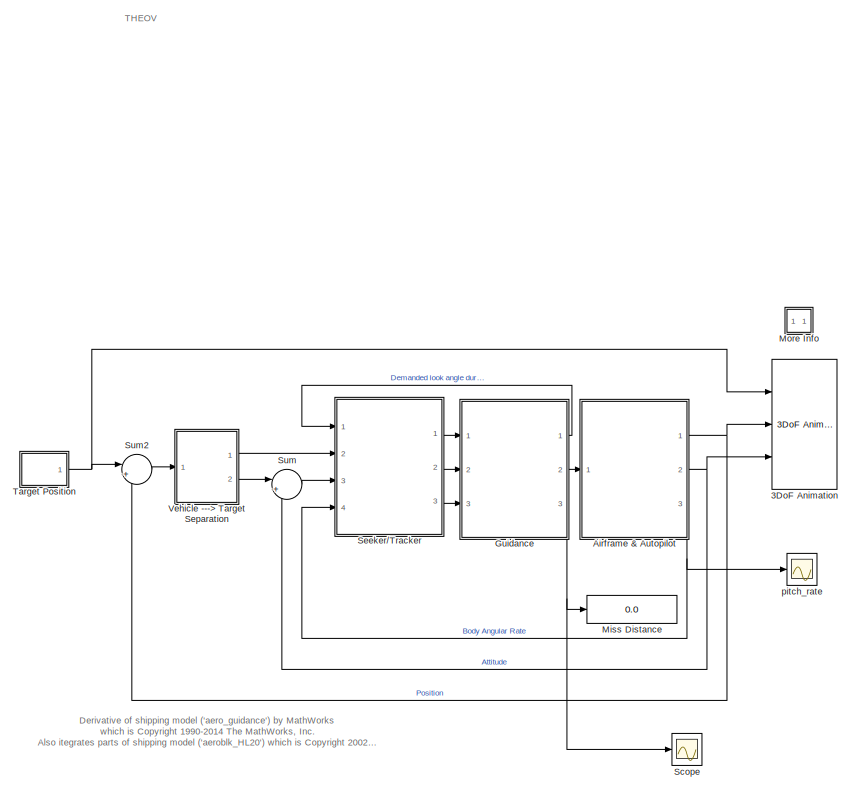
[diagram: root canvas - part 1/2, right side, full height]
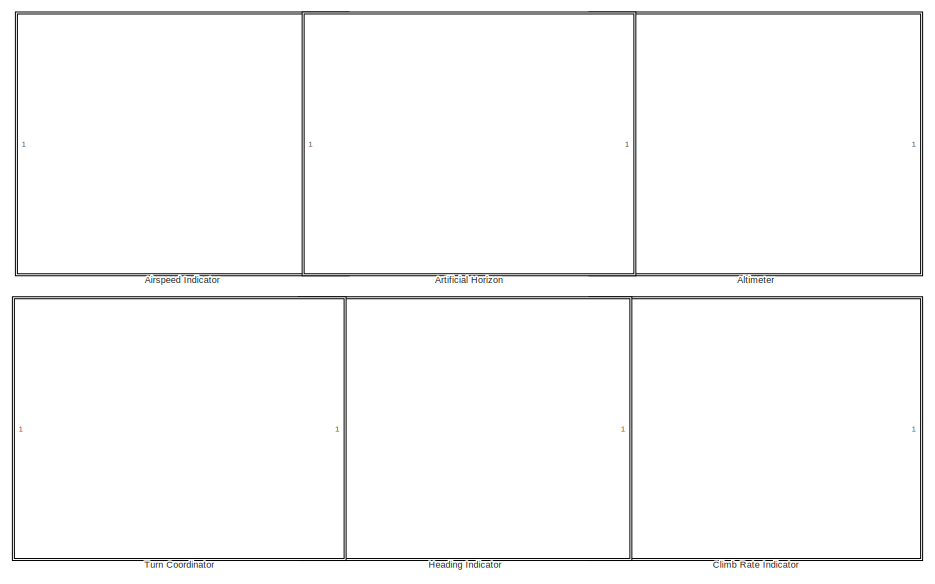
[diagram: root canvas - part 2/2, middle left region]
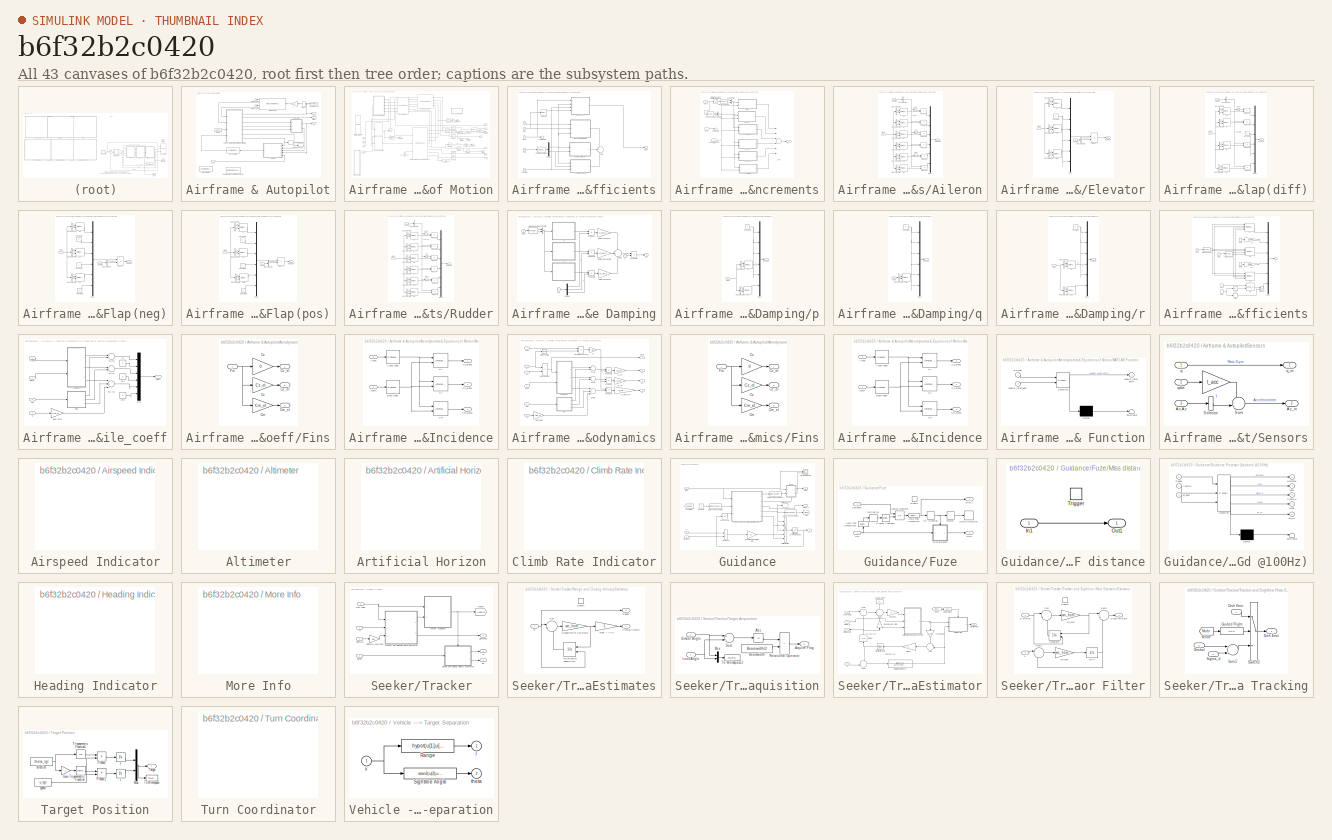
[diagram: thumbnail index - all 43 canvases of the model, root first then tree order]
MODEL slx_b6f32b2c0420
KIND model
CONFIG AbsTol = 1e-6
CONFIG EnableMultiTasking = off
CONFIG FixedStep = auto
CONFIG MaxStep = auto
CONFIG MinStep = auto
CONFIG PreLoadFcn = % aeroblk_init_HL20\naero_guid_dat\n
CONFIG RelTol = 1e-3
CONFIG SampleTimeConstraint = Unconstrained
CONFIG Solver = ode45
CONFIG SolverName = ode45
CONFIG StartTime = 0.0
CONFIG StopFcn = aero_guid_plot
CONFIG StopTime = 5
BLOCK [Reference] 3DoF Animation  REF=aerospace/Animation/3DoF Animation  (lib defined in mdl_cf564d925549, slx_1354fe9238a2, +3 more)
  Ports = [3]
  SourceBlock = aerospace/Animation/3DoF Animation
  SourceProductBaseCode = SL
  SourceProductName = Simulink
  SourceType = 3DoF Animation
BLOCK [SubSystem] Airframe & Autopilot
  Ports = [1, 3]
  RequestExecContextInheritance = off
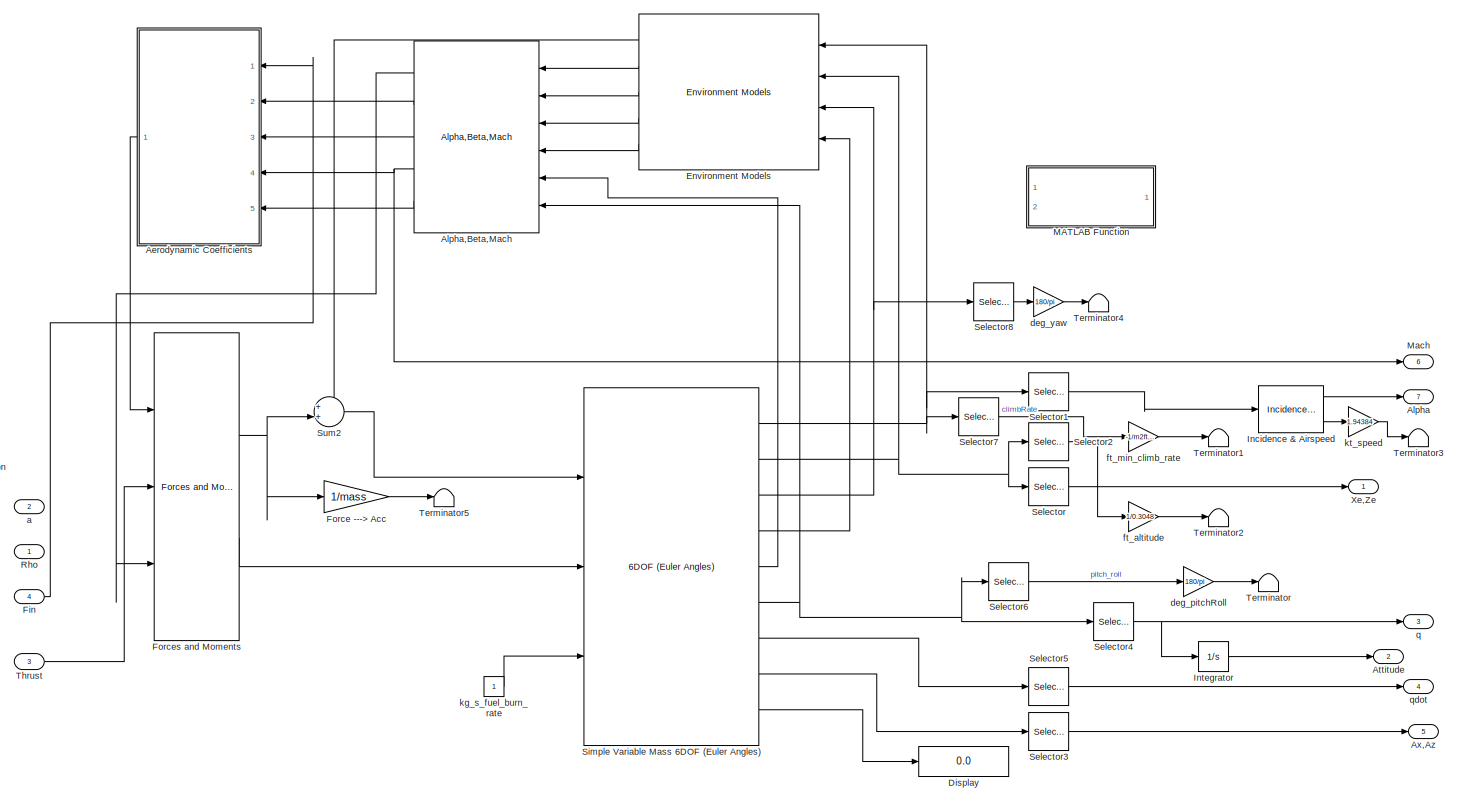
[diagram: Airframe & Autopilot/Aerodynamics & Equations of Motion - part 1/2, most of the canvas]
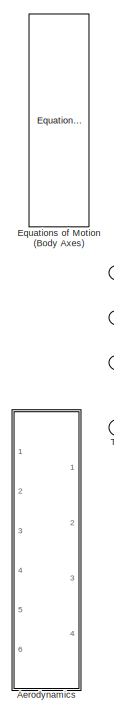
[diagram: Airframe & Autopilot/Aerodynamics & Equations of Motion - part 2/2, left side, full height]
BLOCK [SubSystem] Airframe & Autopilot/Aerodynamics & Equations of Motion
  Ports = [4, 7]
  RequestExecContextInheritance = off
BLOCK [Reference] Airframe & Autopilot/Aerodynamics & Equations of Motion/ Equations of Motion (Body Axes)  REF=aerospace/3DoF  (lib defined in mdl_cf564d925549, slx_1354fe9238a2, +3 more)
Equations
of
Motion / Equations of Motion
(Body Axes)
  Ports = [3, 6]
  SourceBlock = aerospace/3DoF\nEquations\nof\nMotion / Equations of Motion\n(Body Axes)
  SourceProductBaseCode = SL
  SourceProductName = Simulink
  SourceType = 3 DOF equations of motion
BLOCK [SubSystem] Airframe & Autopilot/Aerodynamics & Equations of Motion/Aerodynamic Coefficients
  AncestorBlock = aeroblk_lib_HL20/HL20\nAirframe/Aerodynamic\nCoefficients
  Ports = [5, 1]
  RequestExecContextInheritance = off
BLOCK [SubSystem] Airframe & Autopilot/Aerodynamics & Equations of Motion/Aerodynamic Coefficients/Actuator Increments
  Commented = on
  Ports = [3, 1]
  RequestExecContextInheritance = off
BLOCK [Saturate] Airframe & Autopilot/Aerodynamics & Equations of Motion/Aerodynamic Coefficients/Actuator Increments/(0 to inf) Constants Held fixed for alpha<0
  InputPortMap = u0
  LowerLimit = 0
  Ports = [1, 1]
  UpperLimit = inf
BLOCK [Inport] Airframe & Autopilot/Aerodynamics & Equations of Motion/Aerodynamic Coefficients/Actuator Increments/Actuator Deflections 
  IconDisplay = Port number
  Port = 3
  Unit = deg
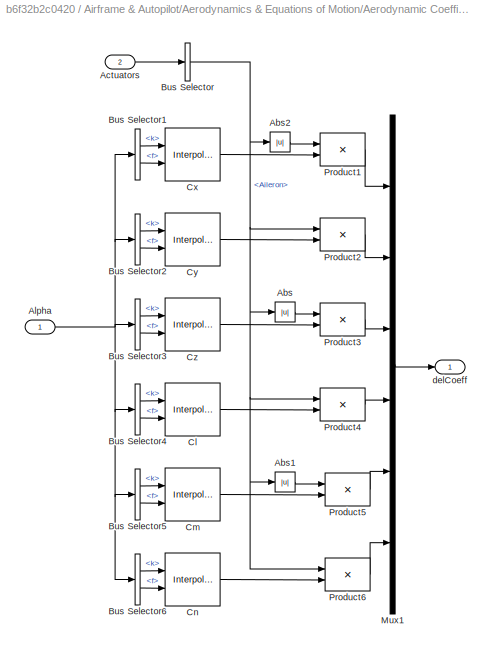
BLOCK [SubSystem] Airframe & Autopilot/Aerodynamics & Equations of Motion/Aerodynamic Coefficients/Actuator Increments/Aileron
  Ports = [2, 1]
  RequestExecContextInheritance = off
BLOCK [Abs] Airframe & Autopilot/Aerodynamics & Equations of Motion/Aerodynamic Coefficients/Actuator Increments/Aileron/Abs
BLOCK [Abs] Airframe & Autopilot/Aerodynamics & Equations of Motion/Aerodynamic Coefficients/Actuator Increments/Aileron/Abs1
BLOCK [Abs] Airframe & Autopilot/Aerodynamics & Equations of Motion/Aerodynamic Coefficients/Actuator Increments/Aileron/Abs2
BLOCK [Inport] Airframe & Autopilot/Aerodynamics & Equations of Motion/Aerodynamic Coefficients/Actuator Increments/Aileron/Actuators
  IconDisplay = Port number
  Port = 2
BLOCK [Inport] Airframe & Autopilot/Aerodynamics & Equations of Motion/Aerodynamic Coefficients/Actuator Increments/Aileron/Alpha
  IconDisplay = Port number
BLOCK [BusSelector] Airframe & Autopilot/Aerodynamics & Equations of Motion/Aerodynamic Coefficients/Actuator Increments/Aileron/Bus Selector
  Commented = through
  OutputAsBus = off
  OutputSignals = Aileron
  Ports = [1, 1]
BLOCK [BusSelector] Airframe & Autopilot/Aerodynamics & Equations of Motion/Aerodynamic Coefficients/Actuator Increments/Aileron/Bus Selector1
  OutputAsBus = off
  OutputSignals = k,f
  Ports = [1, 2]
BLOCK [BusSelector] Airframe & Autopilot/Aerodynamics & Equations of Motion/Aerodynamic Coefficients/Actuator Increments/Aileron/Bus Selector2
  OutputAsBus = off
  OutputSignals = k,f
  Ports = [1, 2]
BLOCK [BusSelector] Airframe & Autopilot/Aerodynamics & Equations of Motion/Aerodynamic Coefficients/Actuator Increments/Aileron/Bus Selector3
  OutputAsBus = off
  OutputSignals = k,f
  Ports = [1, 2]
BLOCK [BusSelector] Airframe & Autopilot/Aerodynamics & Equations of Motion/Aerodynamic Coefficients/Actuator Increments/Aileron/Bus Selector4
  OutputAsBus = off
  OutputSignals = k,f
  Ports = [1, 2]
BLOCK [BusSelector] Airframe & Autopilot/Aerodynamics & Equations of Motion/Aerodynamic Coefficients/Actuator Increments/Aileron/Bus Selector5
  OutputAsBus = off
  OutputSignals = k,f
  Ports = [1, 2]
BLOCK [BusSelector] Airframe & Autopilot/Aerodynamics & Equations of Motion/Aerodynamic Coefficients/Actuator Increments/Aileron/Bus Selector6
  OutputAsBus = off
  OutputSignals = k,f
  Ports = [1, 2]
BLOCK [Interpolation_n-D] Airframe & Autopilot/Aerodynamics & Equations of Motion/Aerodynamic Coefficients/Actuator Increments/Aileron/Cl
  InputPortMap = u0,u1
  NumberOfTableDimensions = 1
  Ports = [2, 1]
  RemoveProtectionIndex = on
  Table = Clda
BLOCK [Interpolation_n-D] Airframe & Autopilot/Aerodynamics & Equations of Motion/Aerodynamic Coefficients/Actuator Increments/Aileron/Cm
  InputPortMap = u0,u1
  NumberOfTableDimensions = 1
  Ports = [2, 1]
  RemoveProtectionIndex = on
  Table = Cmda
BLOCK [Interpolation_n-D] Airframe & Autopilot/Aerodynamics & Equations of Motion/Aerodynamic Coefficients/Actuator Increments/Aileron/Cn
  InputPortMap = u0,u1
  NumberOfTableDimensions = 1
  Ports = [2, 1]
  RemoveProtectionIndex = on
  Table = Cnda
BLOCK [Interpolation_n-D] Airframe & Autopilot/Aerodynamics & Equations of Motion/Aerodynamic Coefficients/Actuator Increments/Aileron/Cx
  InputPortMap = u0,u1
  NumberOfTableDimensions = 1
  Ports = [2, 1]
  RemoveProtectionIndex = on
  Table = CXda
BLOCK [Interpolation_n-D] Airframe & Autopilot/Aerodynamics & Equations of Motion/Aerodynamic Coefficients/Actuator Increments/Aileron/Cy
  InputPortMap = u0,u1
  NumberOfTableDimensions = 1
  Ports = [2, 1]
  RemoveProtectionIndex = on
  Table = CYda
BLOCK [Interpolation_n-D] Airframe & Autopilot/Aerodynamics & Equations of Motion/Aerodynamic Coefficients/Actuator Increments/Aileron/Cz
  InputPortMap = u0,u1
  NumberOfTableDimensions = 1
  Ports = [2, 1]
  RemoveProtectionIndex = on
  Table = CZda
BLOCK [Mux] Airframe & Autopilot/Aerodynamics & Equations of Motion/Aerodynamic Coefficients/Actuator Increments/Aileron/Mux1
  Inputs = 6
  Ports = [6, 1]
BLOCK [Product] Airframe & Autopilot/Aerodynamics & Equations of Motion/Aerodynamic Coefficients/Actuator Increments/Aileron/Product1
  Ports = [2, 1]
  RndMeth = Floor
BLOCK [Product] Airframe & Autopilot/Aerodynamics & Equations of Motion/Aerodynamic Coefficients/Actuator Increments/Aileron/Product2
  Ports = [2, 1]
  RndMeth = Floor
BLOCK [Product] Airframe & Autopilot/Aerodynamics & Equations of Motion/Aerodynamic Coefficients/Actuator Increments/Aileron/Product3
  Ports = [2, 1]
  RndMeth = Floor
BLOCK [Product] Airframe & Autopilot/Aerodynamics & Equations of Motion/Aerodynamic Coefficients/Actuator Increments/Aileron/Product4
  Ports = [2, 1]
  RndMeth = Floor
BLOCK [Product] Airframe & Autopilot/Aerodynamics & Equations of Motion/Aerodynamic Coefficients/Actuator Increments/Aileron/Product5
  Ports = [2, 1]
  RndMeth = Floor
BLOCK [Product] Airframe & Autopilot/Aerodynamics & Equations of Motion/Aerodynamic Coefficients/Actuator Increments/Aileron/Product6
  Ports = [2, 1]
  RndMeth = Floor
BLOCK [Outport] Airframe & Autopilot/Aerodynamics & Equations of Motion/Aerodynamic Coefficients/Actuator Increments/Aileron/delCoeff
  IconDisplay = Port number
BLOCK [Inport] Airframe & Autopilot/Aerodynamics & Equations of Motion/Aerodynamic Coefficients/Actuator Increments/Alpha
  IconDisplay = Port number
  Unit = deg
BLOCK [PreLookup] Airframe & Autopilot/Aerodynamics & Equations of Motion/Aerodynamic Coefficients/Actuator Increments/AlphaLookup
  BeginIndexSearchUsingPreviousIndexResult = on
  BreakpointsData = alpha_vec_0
  ExtrapMethod = Linear
  InputPortMap = u0
  Ports = [1, 2]
BLOCK [PreLookup] Airframe & Autopilot/Aerodynamics & Equations of Motion/Aerodynamic Coefficients/Actuator Increments/AlphaLookup0
  BeginIndexSearchUsingPreviousIndexResult = on
  BreakpointsData = alpha_vec_0
  ExtrapMethod = Linear
  InputPortMap = u0
  Ports = [1, 2]
BLOCK [Inport] Airframe & Autopilot/Aerodynamics & Equations of Motion/Aerodynamic Coefficients/Actuator Increments/Beta
  IconDisplay = Port number
  Port = 2
  Unit = deg
BLOCK [BusCreator] Airframe & Autopilot/Aerodynamics & Equations of Motion/Aerodynamic Coefficients/Actuator Increments/Bus Creator
  DisplayOption = bar
  InheritFromInputs = on
  Inputs = 2
  Ports = [2, 1]
BLOCK [BusCreator] Airframe & Autopilot/Aerodynamics & Equations of Motion/Aerodynamic Coefficients/Actuator Increments/Bus Creator1
  DisplayOption = bar
  InheritFromInputs = on
  Inputs = 2
  Ports = [2, 1]
BLOCK [SubSystem] Airframe & Autopilot/Aerodynamics & Equations of Motion/Aerodynamic Coefficients/Actuator Increments/Elevator
  Ports = [2, 1]
  RequestExecContextInheritance = off
BLOCK [Inport] Airframe & Autopilot/Aerodynamics & Equations of Motion/Aerodynamic Coefficients/Actuator Increments/Elevator/Actuators
  IconDisplay = Port number
  Port = 2
BLOCK [Inport] Airframe & Autopilot/Aerodynamics & Equations of Motion/Aerodynamic Coefficients/Actuator Increments/Elevator/Alpha
  IconDisplay = Port number
BLOCK [BusSelector] Airframe & Autopilot/Aerodynamics & Equations of Motion/Aerodynamic Coefficients/Actuator Increments/Elevator/Bus Selector1
  Commented = through
  OutputAsBus = off
  OutputSignals = Elevator
  Ports = [1, 1]
BLOCK [BusSelector] Airframe & Autopilot/Aerodynamics & Equations of Motion/Aerodynamic Coefficients/Actuator Increments/Elevator/Bus Selector2
  OutputAsBus = off
  OutputSignals = k,f
  Ports = [1, 2]
BLOCK [BusSelector] Airframe & Autopilot/Aerodynamics & Equations of Motion/Aerodynamic Coefficients/Actuator Increments/Elevator/Bus Selector3
  OutputAsBus = off
  OutputSignals = k,f
  Ports = [1, 2]
BLOCK [BusSelector] Airframe & Autopilot/Aerodynamics & Equations of Motion/Aerodynamic Coefficients/Actuator Increments/Elevator/Bus Selector5
  OutputAsBus = off
  OutputSignals = k,f
  Ports = [1, 2]
BLOCK [Interpolation_n-D] Airframe & Autopilot/Aerodynamics & Equations of Motion/Aerodynamic Coefficients/Actuator Increments/Elevator/Cm
  InputPortMap = u0,u1
  NumberOfTableDimensions = 1
  Ports = [2, 1]
  RemoveProtectionIndex = on
  Table = Cmde
BLOCK [Constant] Airframe & Autopilot/Aerodynamics & Equations of Motion/Aerodynamic Coefficients/Actuator Increments/Elevator/Constant1
  Value = 0
BLOCK [Interpolation_n-D] Airframe & Autopilot/Aerodynamics & Equations of Motion/Aerodynamic Coefficients/Actuator Increments/Elevator/Cx
  InputPortMap = u0,u1
  NumberOfTableDimensions = 1
  Ports = [2, 1]
  RemoveProtectionIndex = on
  Table = CXde
BLOCK [Interpolation_n-D] Airframe & Autopilot/Aerodynamics & Equations of Motion/Aerodynamic Coefficients/Actuator Increments/Elevator/Cz
  InputPortMap = u0,u1
  NumberOfTableDimensions = 1
  Ports = [2, 1]
  RemoveProtectionIndex = on
  Table = CZde
BLOCK [Mux] Airframe & Autopilot/Aerodynamics & Equations of Motion/Aerodynamic Coefficients/Actuator Increments/Elevator/Mux1
  Inputs = 6
  Ports = [6, 1]
BLOCK [Product] Airframe & Autopilot/Aerodynamics & Equations of Motion/Aerodynamic Coefficients/Actuator Increments/Elevator/Product
  Ports = [2, 1]
  RndMeth = Floor
BLOCK [Outport] Airframe & Autopilot/Aerodynamics & Equations of Motion/Aerodynamic Coefficients/Actuator Increments/Elevator/delCoeff
  IconDisplay = Port number
BLOCK [SubSystem] Airframe & Autopilot/Aerodynamics & Equations of Motion/Aerodynamic Coefficients/Actuator Increments/Flap(diff)
  Ports = [2, 1]
  RequestExecContextInheritance = off
BLOCK [Abs] Airframe & Autopilot/Aerodynamics & Equations of Motion/Aerodynamic Coefficients/Actuator Increments/Flap(diff)/Abs2
BLOCK [Inport] Airframe & Autopilot/Aerodynamics & Equations of Motion/Aerodynamic Coefficients/Actuator Increments/Flap(diff)/Actuators
  IconDisplay = Port number
  Port = 2
BLOCK [Inport] Airframe & Autopilot/Aerodynamics & Equations of Motion/Aerodynamic Coefficients/Actuator Increments/Flap(diff)/Alpha
  IconDisplay = Port number
BLOCK [BusSelector] Airframe & Autopilot/Aerodynamics & Equations of Motion/Aerodynamic Coefficients/Actuator Increments/Flap(diff)/Bus Selector
  Commented = through
  OutputAsBus = off
  OutputSignals = Flap(diff)
  Ports = [1, 1]
BLOCK [BusSelector] Airframe & Autopilot/Aerodynamics & Equations of Motion/Aerodynamic Coefficients/Actuator Increments/Flap(diff)/Bus Selector1
  OutputAsBus = off
  OutputSignals = k,f
  Ports = [1, 2]
BLOCK [BusSelector] Airframe & Autopilot/Aerodynamics & Equations of Motion/Aerodynamic Coefficients/Actuator Increments/Flap(diff)/Bus Selector2
  OutputAsBus = off
  OutputSignals = k,f
  Ports = [1, 2]
BLOCK [BusSelector] Airframe & Autopilot/Aerodynamics & Equations of Motion/Aerodynamic Coefficients/Actuator Increments/Flap(diff)/Bus Selector4
  OutputAsBus = off
  OutputSignals = k,f
  Ports = [1, 2]
BLOCK [BusSelector] Airframe & Autopilot/Aerodynamics & Equations of Motion/Aerodynamic Coefficients/Actuator Increments/Flap(diff)/Bus Selector6
  OutputAsBus = off
  OutputSignals = k,f
  Ports = [1, 2]
BLOCK [Interpolation_n-D] Airframe & Autopilot/Aerodynamics & Equations of Motion/Aerodynamic Coefficients/Actuator Increments/Flap(diff)/Cl
  InputPortMap = u0,u1
  NumberOfTableDimensions = 1
  Ports = [2, 1]
  RemoveProtectionIndex = on
  Table = Clddf
BLOCK [Interpolation_n-D] Airframe & Autopilot/Aerodynamics & Equations of Motion/Aerodynamic Coefficients/Actuator Increments/Flap(diff)/Cn
  InputPortMap = u0,u1
  NumberOfTableDimensions = 1
  Ports = [2, 1]
  RemoveProtectionIndex = on
  Table = Cnddf
BLOCK [Constant] Airframe & Autopilot/Aerodynamics & Equations of Motion/Aerodynamic Coefficients/Actuator Increments/Flap(diff)/Constant1
  Value = 0
BLOCK [Interpolation_n-D] Airframe & Autopilot/Aerodynamics & Equations of Motion/Aerodynamic Coefficients/Actuator Increments/Flap(diff)/Cx
  InputPortMap = u0,u1
  NumberOfTableDimensions = 1
  Ports = [2, 1]
  RemoveProtectionIndex = on
  Table = CXddf
BLOCK [Interpolation_n-D] Airframe & Autopilot/Aerodynamics & Equations of Motion/Aerodynamic Coefficients/Actuator Increments/Flap(diff)/Cy
  InputPortMap = u0,u1
  NumberOfTableDimensions = 1
  Ports = [2, 1]
  RemoveProtectionIndex = on
  Table = CYddf
BLOCK [Mux] Airframe & Autopilot/Aerodynamics & Equations of Motion/Aerodynamic Coefficients/Actuator Increments/Flap(diff)/Mux1
  Inputs = 6
  Ports = [6, 1]
BLOCK [Product] Airframe & Autopilot/Aerodynamics & Equations of Motion/Aerodynamic Coefficients/Actuator Increments/Flap(diff)/Product
  Ports = [2, 1]
  RndMeth = Floor
BLOCK [Product] Airframe & Autopilot/Aerodynamics & Equations of Motion/Aerodynamic Coefficients/Actuator Increments/Flap(diff)/Product1
  Ports = [2, 1]
  RndMeth = Floor
BLOCK [Product] Airframe & Autopilot/Aerodynamics & Equations of Motion/Aerodynamic Coefficients/Actuator Increments/Flap(diff)/Product2
  Ports = [2, 1]
  RndMeth = Floor
BLOCK [Product] Airframe & Autopilot/Aerodynamics & Equations of Motion/Aerodynamic Coefficients/Actuator Increments/Flap(diff)/Product3
  Ports = [2, 1]
  RndMeth = Floor
BLOCK [Outport] Airframe & Autopilot/Aerodynamics & Equations of Motion/Aerodynamic Coefficients/Actuator Increments/Flap(diff)/delCoeff
  IconDisplay = Port number
BLOCK [SubSystem] Airframe & Autopilot/Aerodynamics & Equations of Motion/Aerodynamic Coefficients/Actuator Increments/Flap(neg)
  Ports = [2, 1]
  RequestExecContextInheritance = off
BLOCK [Inport] Airframe & Autopilot/Aerodynamics & Equations of Motion/Aerodynamic Coefficients/Actuator Increments/Flap(neg)/Actuators
  IconDisplay = Port number
  Port = 2
BLOCK [Inport] Airframe & Autopilot/Aerodynamics & Equations of Motion/Aerodynamic Coefficients/Actuator Increments/Flap(neg)/Alpha
  IconDisplay = Port number
BLOCK [BusSelector] Airframe & Autopilot/Aerodynamics & Equations of Motion/Aerodynamic Coefficients/Actuator Increments/Flap(neg)/Bus Selector
  Commented = through
  OutputAsBus = off
  OutputSignals = Flap(neg)
  Ports = [1, 1]
BLOCK [BusSelector] Airframe & Autopilot/Aerodynamics & Equations of Motion/Aerodynamic Coefficients/Actuator Increments/Flap(neg)/Bus Selector1
  OutputAsBus = off
  OutputSignals = k,f
  Ports = [1, 2]
BLOCK [BusSelector] Airframe & Autopilot/Aerodynamics & Equations of Motion/Aerodynamic Coefficients/Actuator Increments/Flap(neg)/Bus Selector3
  OutputAsBus = off
  OutputSignals = k,f
  Ports = [1, 2]
BLOCK [BusSelector] Airframe & Autopilot/Aerodynamics & Equations of Motion/Aerodynamic Coefficients/Actuator Increments/Flap(neg)/Bus Selector5
  OutputAsBus = off
  OutputSignals = k,f
  Ports = [1, 2]
BLOCK [Interpolation_n-D] Airframe & Autopilot/Aerodynamics & Equations of Motion/Aerodynamic Coefficients/Actuator Increments/Flap(neg)/Cm
  InputPortMap = u0,u1
  NumberOfTableDimensions = 1
  Ports = [2, 1]
  RemoveProtectionIndex = on
  Table = Cmdfn
BLOCK [Constant] Airframe & Autopilot/Aerodynamics & Equations of Motion/Aerodynamic Coefficients/Actuator Increments/Flap(neg)/Constant1
  Value = 0
BLOCK [Constant] Airframe & Autopilot/Aerodynamics & Equations of Motion/Aerodynamic Coefficients/Actuator Increments/Flap(neg)/Constant2
  Value = 0
BLOCK [Constant] Airframe & Autopilot/Aerodynamics & Equations of Motion/Aerodynamic Coefficients/Actuator Increments/Flap(neg)/Constant3
  Value = 0
BLOCK [Interpolation_n-D] Airframe & Autopilot/Aerodynamics & Equations of Motion/Aerodynamic Coefficients/Actuator Increments/Flap(neg)/Cx
  InputPortMap = u0,u1
  NumberOfTableDimensions = 1
  Ports = [2, 1]
  RemoveProtectionIndex = on
  Table = CXdfn
BLOCK [Interpolation_n-D] Airframe & Autopilot/Aerodynamics & Equations of Motion/Aerodynamic Coefficients/Actuator Increments/Flap(neg)/Cz
  InputPortMap = u0,u1
  NumberOfTableDimensions = 1
  Ports = [2, 1]
  RemoveProtectionIndex = on
  Table = CZdfn
BLOCK [Mux] Airframe & Autopilot/Aerodynamics & Equations of Motion/Aerodynamic Coefficients/Actuator Increments/Flap(neg)/Mux1
  Inputs = 6
  Ports = [6, 1]
BLOCK [Product] Airframe & Autopilot/Aerodynamics & Equations of Motion/Aerodynamic Coefficients/Actuator Increments/Flap(neg)/Product
  Ports = [2, 1]
  RndMeth = Floor
BLOCK [Outport] Airframe & Autopilot/Aerodynamics & Equations of Motion/Aerodynamic Coefficients/Actuator Increments/Flap(neg)/delCoeff
  IconDisplay = Port number
BLOCK [SubSystem] Airframe & Autopilot/Aerodynamics & Equations of Motion/Aerodynamic Coefficients/Actuator Increments/Flap(pos)
  Ports = [2, 1]
  RequestExecContextInheritance = off
BLOCK [Inport] Airframe & Autopilot/Aerodynamics & Equations of Motion/Aerodynamic Coefficients/Actuator Increments/Flap(pos)/Actuators
  IconDisplay = Port number
  Port = 2
BLOCK [Inport] Airframe & Autopilot/Aerodynamics & Equations of Motion/Aerodynamic Coefficients/Actuator Increments/Flap(pos)/Alpha
  IconDisplay = Port number
BLOCK [BusSelector] Airframe & Autopilot/Aerodynamics & Equations of Motion/Aerodynamic Coefficients/Actuator Increments/Flap(pos)/Bus Selector
  Commented = through
  OutputAsBus = off
  OutputSignals = Flap(pos)
  Ports = [1, 1]
BLOCK [BusSelector] Airframe & Autopilot/Aerodynamics & Equations of Motion/Aerodynamic Coefficients/Actuator Increments/Flap(pos)/Bus Selector1
  OutputAsBus = off
  OutputSignals = k,f
  Ports = [1, 2]
BLOCK [BusSelector] Airframe & Autopilot/Aerodynamics & Equations of Motion/Aerodynamic Coefficients/Actuator Increments/Flap(pos)/Bus Selector3
  OutputAsBus = off
  OutputSignals = k,f
  Ports = [1, 2]
BLOCK [BusSelector] Airframe & Autopilot/Aerodynamics & Equations of Motion/Aerodynamic Coefficients/Actuator Increments/Flap(pos)/Bus Selector5
  OutputAsBus = off
  OutputSignals = k,f
  Ports = [1, 2]
BLOCK [Interpolation_n-D] Airframe & Autopilot/Aerodynamics & Equations of Motion/Aerodynamic Coefficients/Actuator Increments/Flap(pos)/Cm
  InputPortMap = u0,u1
  NumberOfTableDimensions = 1
  Ports = [2, 1]
  RemoveProtectionIndex = on
  Table = Cmdfp
BLOCK [Constant] Airframe & Autopilot/Aerodynamics & Equations of Motion/Aerodynamic Coefficients/Actuator Increments/Flap(pos)/Constant1
  Value = 0
BLOCK [Constant] Airframe & Autopilot/Aerodynamics & Equations of Motion/Aerodynamic Coefficients/Actuator Increments/Flap(pos)/Constant2
  Value = 0
BLOCK [Constant] Airframe & Autopilot/Aerodynamics & Equations of Motion/Aerodynamic Coefficients/Actuator Increments/Flap(pos)/Constant3
  Value = 0
BLOCK [Interpolation_n-D] Airframe & Autopilot/Aerodynamics & Equations of Motion/Aerodynamic Coefficients/Actuator Increments/Flap(pos)/Cx
  InputPortMap = u0,u1
  NumberOfTableDimensions = 1
  Ports = [2, 1]
  RemoveProtectionIndex = on
  Table = CXdfp
BLOCK [Interpolation_n-D] Airframe & Autopilot/Aerodynamics & Equations of Motion/Aerodynamic Coefficients/Actuator Increments/Flap(pos)/Cz
  InputPortMap = u0,u1
  NumberOfTableDimensions = 1
  Ports = [2, 1]
  RemoveProtectionIndex = on
  Table = CZdfp
BLOCK [Mux] Airframe & Autopilot/Aerodynamics & Equations of Motion/Aerodynamic Coefficients/Actuator Increments/Flap(pos)/Mux1
  Inputs = 6
  Ports = [6, 1]
BLOCK [Product] Airframe & Autopilot/Aerodynamics & Equations of Motion/Aerodynamic Coefficients/Actuator Increments/Flap(pos)/Product
  Ports = [2, 1]
  RndMeth = Floor
BLOCK [Outport] Airframe & Autopilot/Aerodynamics & Equations of Motion/Aerodynamic Coefficients/Actuator Increments/Flap(pos)/delCoeff
  IconDisplay = Port number
BLOCK [SubSystem] Airframe & Autopilot/Aerodynamics & Equations of Motion/Aerodynamic Coefficients/Actuator Increments/Rudder
  Ports = [2, 1]
  RequestExecContextInheritance = off
BLOCK [Abs] Airframe & Autopilot/Aerodynamics & Equations of Motion/Aerodynamic Coefficients/Actuator Increments/Rudder/Abs
BLOCK [Abs] Airframe & Autopilot/Aerodynamics & Equations of Motion/Aerodynamic Coefficients/Actuator Increments/Rudder/Abs1
BLOCK [Abs] Airframe & Autopilot/Aerodynamics & Equations of Motion/Aerodynamic Coefficients/Actuator Increments/Rudder/Abs2
BLOCK [Inport] Airframe & Autopilot/Aerodynamics & Equations of Motion/Aerodynamic Coefficients/Actuator Increments/Rudder/Actuators
  IconDisplay = Port number
  Port = 2
BLOCK [Inport] Airframe & Autopilot/Aerodynamics & Equations of Motion/Aerodynamic Coefficients/Actuator Increments/Rudder/Alpha
  IconDisplay = Port number
BLOCK [BusSelector] Airframe & Autopilot/Aerodynamics & Equations of Motion/Aerodynamic Coefficients/Actuator Increments/Rudder/Bus Selector
  Commented = through
  OutputAsBus = off
  OutputSignals = Rudder
  Ports = [1, 1]
BLOCK [BusSelector] Airframe & Autopilot/Aerodynamics & Equations of Motion/Aerodynamic Coefficients/Actuator Increments/Rudder/Bus Selector1
  OutputAsBus = off
  OutputSignals = k,f
  Ports = [1, 2]
BLOCK [BusSelector] Airframe & Autopilot/Aerodynamics & Equations of Motion/Aerodynamic Coefficients/Actuator Increments/Rudder/Bus Selector2
  OutputAsBus = off
  OutputSignals = k,f
  Ports = [1, 2]
BLOCK [BusSelector] Airframe & Autopilot/Aerodynamics & Equations of Motion/Aerodynamic Coefficients/Actuator Increments/Rudder/Bus Selector3
  OutputAsBus = off
  OutputSignals = k,f
  Ports = [1, 2]
BLOCK [BusSelector] Airframe & Autopilot/Aerodynamics & Equations of Motion/Aerodynamic Coefficients/Actuator Increments/Rudder/Bus Selector4
  OutputAsBus = off
  OutputSignals = k,f
  Ports = [1, 2]
BLOCK [BusSelector] Airframe & Autopilot/Aerodynamics & Equations of Motion/Aerodynamic Coefficients/Actuator Increments/Rudder/Bus Selector5
  OutputAsBus = off
  OutputSignals = k,f
  Ports = [1, 2]
BLOCK [BusSelector] Airframe & Autopilot/Aerodynamics & Equations of Motion/Aerodynamic Coefficients/Actuator Increments/Rudder/Bus Selector6
  OutputAsBus = off
  OutputSignals = k,f
  Ports = [1, 2]
BLOCK [Interpolation_n-D] Airframe & Autopilot/Aerodynamics & Equations of Motion/Aerodynamic Coefficients/Actuator Increments/Rudder/Cl
  InputPortMap = u0,u1
  NumberOfTableDimensions = 1
  Ports = [2, 1]
  RemoveProtectionIndex = on
  Table = Cldr
BLOCK [Interpolation_n-D] Airframe & Autopilot/Aerodynamics & Equations of Motion/Aerodynamic Coefficients/Actuator Increments/Rudder/Cm
  InputPortMap = u0,u1
  NumberOfTableDimensions = 1
  Ports = [2, 1]
  RemoveProtectionIndex = on
  Table = Cmdr
BLOCK [Interpolation_n-D] Airframe & Autopilot/Aerodynamics & Equations of Motion/Aerodynamic Coefficients/Actuator Increments/Rudder/Cn
  InputPortMap = u0,u1
  NumberOfTableDimensions = 1
  Ports = [2, 1]
  RemoveProtectionIndex = on
  Table = Cndr
BLOCK [Interpolation_n-D] Airframe & Autopilot/Aerodynamics & Equations of Motion/Aerodynamic Coefficients/Actuator Increments/Rudder/Cx
  InputPortMap = u0,u1
  NumberOfTableDimensions = 1
  Ports = [2, 1]
  RemoveProtectionIndex = on
  Table = CXdr
BLOCK [Interpolation_n-D] Airframe & Autopilot/Aerodynamics & Equations of Motion/Aerodynamic Coefficients/Actuator Increments/Rudder/Cy
  InputPortMap = u0,u1
  NumberOfTableDimensions = 1
  Ports = [2, 1]
  RemoveProtectionIndex = on
  Table = CYdr
BLOCK [Interpolation_n-D] Airframe & Autopilot/Aerodynamics & Equations of Motion/Aerodynamic Coefficients/Actuator Increments/Rudder/Cz
  InputPortMap = u0,u1
  NumberOfTableDimensions = 1
  Ports = [2, 1]
  RemoveProtectionIndex = on
  Table = CZdr
BLOCK [Mux] Airframe & Autopilot/Aerodynamics & Equations of Motion/Aerodynamic Coefficients/Actuator Increments/Rudder/Mux1
  Inputs = 6
  Ports = [6, 1]
BLOCK [Product] Airframe & Autopilot/Aerodynamics & Equations of Motion/Aerodynamic Coefficients/Actuator Increments/Rudder/Product1
  Ports = [2, 1]
  RndMeth = Floor
BLOCK [Product] Airframe & Autopilot/Aerodynamics & Equations of Motion/Aerodynamic Coefficients/Actuator Increments/Rudder/Product2
  Ports = [2, 1]
  RndMeth = Floor
BLOCK [Product] Airframe & Autopilot/Aerodynamics & Equations of Motion/Aerodynamic Coefficients/Actuator Increments/Rudder/Product3
  Ports = [2, 1]
  RndMeth = Floor
BLOCK [Product] Airframe & Autopilot/Aerodynamics & Equations of Motion/Aerodynamic Coefficients/Actuator Increments/Rudder/Product4
  Ports = [2, 1]
  RndMeth = Floor
BLOCK [Product] Airframe & Autopilot/Aerodynamics & Equations of Motion/Aerodynamic Coefficients/Actuator Increments/Rudder/Product5
  Ports = [2, 1]
  RndMeth = Floor
BLOCK [Product] Airframe & Autopilot/Aerodynamics & Equations of Motion/Aerodynamic Coefficients/Actuator Increments/Rudder/Product6
  Ports = [2, 1]
  RndMeth = Floor
BLOCK [Outport] Airframe & Autopilot/Aerodynamics & Equations of Motion/Aerodynamic Coefficients/Actuator Increments/Rudder/delCoeff
  IconDisplay = Port number
BLOCK [Sum] Airframe & Autopilot/Aerodynamics & Equations of Motion/Aerodynamic Coefficients/Actuator Increments/Sum
  Inputs = ++++++
  Ports = [6, 1]
BLOCK [Terminator] Airframe & Autopilot/Aerodynamics & Equations of Motion/Aerodynamic Coefficients/Actuator Increments/Terminator1
BLOCK [Outport] Airframe & Autopilot/Aerodynamics & Equations of Motion/Aerodynamic Coefficients/Actuator Increments/cl
  IconDisplay = Port number
  InitialOutput = 0
BLOCK [Inport] Airframe & Autopilot/Aerodynamics & Equations of Motion/Aerodynamic Coefficients/Actuators
  IconDisplay = Port number
  Unit = deg
BLOCK [Reference] Airframe & Autopilot/Aerodynamics & Equations of Motion/Aerodynamic Coefficients/Angle Conversion  REF=aerolibconvert2/Angle Conversion
  Ports = [1, 1]
  SourceBlock = aerolibconvert2/Angle Conversion
  SourceProductBaseCode = AE
  SourceProductName = Aerospace Blockset
  SourceType = Angle Conversion
BLOCK [SubSystem] Airframe & Autopilot/Aerodynamics & Equations of Motion/Aerodynamic Coefficients/Body Rate Damping
  Commented = on
  Ports = [3, 1]
  RequestExecContextInheritance = off
BLOCK [Inport] Airframe & Autopilot/Aerodynamics & Equations of Motion/Aerodynamic Coefficients/Body Rate Damping/Alpha
  IconDisplay = Port number
  Port = 3
  Unit = deg
BLOCK [PreLookup] Airframe & Autopilot/Aerodynamics & Equations of Motion/Aerodynamic Coefficients/Body Rate Damping/AlphaLookup
  BeginIndexSearchUsingPreviousIndexResult = on
  BreakpointsData = alpha_vec_damping
  ExtrapMethod = Linear
  InputPortMap = u0
  Ports = [1, 2]
BLOCK [BusCreator] Airframe & Autopilot/Aerodynamics & Equations of Motion/Aerodynamic Coefficients/Body Rate Damping/Bus Creator
  DisplayOption = bar
  InheritFromInputs = on
  Inputs = 2
  Ports = [2, 1]
BLOCK [Demux] Airframe & Autopilot/Aerodynamics & Equations of Motion/Aerodynamic Coefficients/Body Rate Damping/Demux
  Outputs = 3
  Ports = [1, 3]
BLOCK [Product] Airframe & Autopilot/Aerodynamics & Equations of Motion/Aerodynamic Coefficients/Body Rate Damping/Product
  Ports = [2, 1]
  RndMeth = Floor
BLOCK [Product] Airframe & Autopilot/Aerodynamics & Equations of Motion/Aerodynamic Coefficients/Body Rate Damping/Product1
  Ports = [2, 1]
  RndMeth = Floor
BLOCK [Product] Airframe & Autopilot/Aerodynamics & Equations of Motion/Aerodynamic Coefficients/Body Rate Damping/Product2
  Ports = [2, 1]
  RndMeth = Floor
BLOCK [Product] Airframe & Autopilot/Aerodynamics & Equations of Motion/Aerodynamic Coefficients/Body Rate Damping/Product3
  Inputs = */
  Ports = [2, 1]
  RndMeth = Floor
BLOCK [Gain] Airframe & Autopilot/Aerodynamics & Equations of Motion/Aerodynamic Coefficients/Body Rate Damping/Reference Length
  Gain = d_ref/2
BLOCK [Gain] Airframe & Autopilot/Aerodynamics & Equations of Motion/Aerodynamic Coefficients/Body Rate Damping/Reference Span
  Gain = b_ref/2
BLOCK [Gain] Airframe & Autopilot/Aerodynamics & Equations of Motion/Aerodynamic Coefficients/Body Rate Damping/Reference Span 
  Gain = b_ref/2
BLOCK [Sum] Airframe & Autopilot/Aerodynamics & Equations of Motion/Aerodynamic Coefficients/Body Rate Damping/Sum1
  IconShape = round
  Inputs = +++
  Ports = [3, 1]
BLOCK [Inport] Airframe & Autopilot/Aerodynamics & Equations of Motion/Aerodynamic Coefficients/Body Rate Damping/V
  IconDisplay = Port number
  Unit = m/s
BLOCK [Outport] Airframe & Autopilot/Aerodynamics & Equations of Motion/Aerodynamic Coefficients/Body Rate Damping/cl
  IconDisplay = Port number
  InitialOutput = 0
BLOCK [SubSystem] Airframe & Autopilot/Aerodynamics & Equations of Motion/Aerodynamic Coefficients/Body Rate Damping/p
  Ports = [1, 1]
  RequestExecContextInheritance = off
BLOCK [Inport] Airframe & Autopilot/Aerodynamics & Equations of Motion/Aerodynamic Coefficients/Body Rate Damping/p,q,r
  IconDisplay = Port number
  Port = 2
  Unit = rad/second
BLOCK [Inport] Airframe & Autopilot/Aerodynamics & Equations of Motion/Aerodynamic Coefficients/Body Rate Damping/p/Alpha
  IconDisplay = Port number
BLOCK [BusSelector] Airframe & Autopilot/Aerodynamics & Equations of Motion/Aerodynamic Coefficients/Body Rate Damping/p/Bus Selector
  OutputAsBus = off
  OutputSignals = k,f
  Ports = [1, 2]
BLOCK [BusSelector] Airframe & Autopilot/Aerodynamics & Equations of Motion/Aerodynamic Coefficients/Body Rate Damping/p/Bus Selector1
  OutputAsBus = off
  OutputSignals = k,f
  Ports = [1, 2]
BLOCK [Interpolation_n-D] Airframe & Autopilot/Aerodynamics & Equations of Motion/Aerodynamic Coefficients/Body Rate Damping/p/Cl
  InputPortMap = u0,u1
  NumberOfTableDimensions = 1
  Ports = [2, 1]
  RemoveProtectionIndex = on
  Table = Clp
BLOCK [Interpolation_n-D] Airframe & Autopilot/Aerodynamics & Equations of Motion/Aerodynamic Coefficients/Body Rate Damping/p/Cn
  InputPortMap = u0,u1
  NumberOfTableDimensions = 1
  Ports = [2, 1]
  RemoveProtectionIndex = on
  Table = Cnp
BLOCK [Constant] Airframe & Autopilot/Aerodynamics & Equations of Motion/Aerodynamic Coefficients/Body Rate Damping/p/Constant1
  Value = 0
BLOCK [Mux] Airframe & Autopilot/Aerodynamics & Equations of Motion/Aerodynamic Coefficients/Body Rate Damping/p/Mux1
  Inputs = 6
  Ports = [6, 1]
BLOCK [Outport] Airframe & Autopilot/Aerodynamics & Equations of Motion/Aerodynamic Coefficients/Body Rate Damping/p/delCoeff
  IconDisplay = Port number
BLOCK [SubSystem] Airframe & Autopilot/Aerodynamics & Equations of Motion/Aerodynamic Coefficients/Body Rate Damping/q
  Ports = [1, 1]
  RequestExecContextInheritance = off
BLOCK [Inport] Airframe & Autopilot/Aerodynamics & Equations of Motion/Aerodynamic Coefficients/Body Rate Damping/q/Alpha
  IconDisplay = Port number
BLOCK [BusSelector] Airframe & Autopilot/Aerodynamics & Equations of Motion/Aerodynamic Coefficients/Body Rate Damping/q/Bus Selector1
  OutputAsBus = off
  OutputSignals = k,f
  Ports = [1, 2]
BLOCK [Interpolation_n-D] Airframe & Autopilot/Aerodynamics & Equations of Motion/Aerodynamic Coefficients/Body Rate Damping/q/Cmq
  InputPortMap = u0,u1
  NumberOfTableDimensions = 1
  Ports = [2, 1]
  RemoveProtectionIndex = on
  Table = Cmq
BLOCK [Constant] Airframe & Autopilot/Aerodynamics & Equations of Motion/Aerodynamic Coefficients/Body Rate Damping/q/Constant3
  Value = 0
BLOCK [Mux] Airframe & Autopilot/Aerodynamics & Equations of Motion/Aerodynamic Coefficients/Body Rate Damping/q/Mux1
  Inputs = 6
  Ports = [6, 1]
BLOCK [Outport] Airframe & Autopilot/Aerodynamics & Equations of Motion/Aerodynamic Coefficients/Body Rate Damping/q/delCoeff
  IconDisplay = Port number
BLOCK [SubSystem] Airframe & Autopilot/Aerodynamics & Equations of Motion/Aerodynamic Coefficients/Body Rate Damping/r
  Ports = [1, 1]
  RequestExecContextInheritance = off
BLOCK [Inport] Airframe & Autopilot/Aerodynamics & Equations of Motion/Aerodynamic Coefficients/Body Rate Damping/r/Alpha
  IconDisplay = Port number
BLOCK [BusSelector] Airframe & Autopilot/Aerodynamics & Equations of Motion/Aerodynamic Coefficients/Body Rate Damping/r/Bus Selector
  OutputAsBus = off
  OutputSignals = k,f
  Ports = [1, 2]
BLOCK [BusSelector] Airframe & Autopilot/Aerodynamics & Equations of Motion/Aerodynamic Coefficients/Body Rate Damping/r/Bus Selector1
  OutputAsBus = off
  OutputSignals = k,f
  Ports = [1, 2]
BLOCK [Interpolation_n-D] Airframe & Autopilot/Aerodynamics & Equations of Motion/Aerodynamic Coefficients/Body Rate Damping/r/Cl
  InputPortMap = u0,u1
  NumberOfTableDimensions = 1
  Ports = [2, 1]
  RemoveProtectionIndex = on
  Table = Clr
BLOCK [Interpolation_n-D] Airframe & Autopilot/Aerodynamics & Equations of Motion/Aerodynamic Coefficients/Body Rate Damping/r/Cn
  InputPortMap = u0,u1
  NumberOfTableDimensions = 1
  Ports = [2, 1]
  RemoveProtectionIndex = on
  Table = Cnr
BLOCK [Constant] Airframe & Autopilot/Aerodynamics & Equations of Motion/Aerodynamic Coefficients/Body Rate Damping/r/Constant
  Value = 0
BLOCK [Mux] Airframe & Autopilot/Aerodynamics & Equations of Motion/Aerodynamic Coefficients/Body Rate Damping/r/Mux1
  Inputs = 6
  Ports = [6, 1]
BLOCK [Outport] Airframe & Autopilot/Aerodynamics & Equations of Motion/Aerodynamic Coefficients/Body Rate Damping/r/delCoeff
  IconDisplay = Port number
BLOCK [Outport] Airframe & Autopilot/Aerodynamics & Equations of Motion/Aerodynamic Coefficients/Coeff
  IconDisplay = Port number
  InitialOutput = 0
BLOCK [SubSystem] Airframe & Autopilot/Aerodynamics & Equations of Motion/Aerodynamic Coefficients/Datum Coefficients
  Commented = on
  Ports = [2, 1]
  RequestExecContextInheritance = off
BLOCK [InportShadow] Airframe & Autopilot/Aerodynamics & Equations of Motion/Aerodynamic Coefficients/Datum Coefficients/ Beta
  IconDisplay = Port number
  Port = 2
  Unit = deg
BLOCK [InportShadow] Airframe & Autopilot/Aerodynamics & Equations of Motion/Aerodynamic Coefficients/Datum Coefficients/ Beta 
  IconDisplay = Port number
  Port = 2
  Unit = deg
BLOCK [Lookup_n-D] Airframe & Autopilot/Aerodynamics & Equations of Motion/Aerodynamic Coefficients/Datum Coefficients/ Cn
  BreakpointsForDimension1 = alpha_vec_Cn0
  BreakpointsForDimension2 = beta_vec_Cn0
  InternalRulePriority = Speed
  Ports = [2, 1]
  RndMeth = Simplest
  Table = Cn0
BLOCK [Abs] Airframe & Autopilot/Aerodynamics & Equations of Motion/Aerodynamic Coefficients/Datum Coefficients/Abs
BLOCK [Inport] Airframe & Autopilot/Aerodynamics & Equations of Motion/Aerodynamic Coefficients/Datum Coefficients/Alpha
  IconDisplay = Port number
  Unit = deg
BLOCK [InportShadow] Airframe & Autopilot/Aerodynamics & Equations of Motion/Aerodynamic Coefficients/Datum Coefficients/Alpha 
  IconDisplay = Port number
  Unit = deg
BLOCK [PreLookup] Airframe & Autopilot/Aerodynamics & Equations of Motion/Aerodynamic Coefficients/Datum Coefficients/AlphaLookup
  BeginIndexSearchUsingPreviousIndexResult = on
  BreakpointsData = alpha_vec_0
  ExtrapMethod = Linear
  InputPortMap = u0
  Ports = [1, 2]
BLOCK [Inport] Airframe & Autopilot/Aerodynamics & Equations of Motion/Aerodynamic Coefficients/Datum Coefficients/Beta
  IconDisplay = Port number
  Port = 2
  Unit = deg
BLOCK [InportShadow] Airframe & Autopilot/Aerodynamics & Equations of Motion/Aerodynamic Coefficients/Datum Coefficients/Beta 
  IconDisplay = Port number
  Port = 2
  Unit = deg
BLOCK [PreLookup] Airframe & Autopilot/Aerodynamics & Equations of Motion/Aerodynamic Coefficients/Datum Coefficients/BetaLookup
  BeginIndexSearchUsingPreviousIndexResult = on
  BreakpointsData = beta_vec_0
  ExtrapMethod = Linear
  InputPortMap = u0
  Ports = [1, 2]
BLOCK [Gain] Airframe & Autopilot/Aerodynamics & Equations of Motion/Aerodynamic Coefficients/Datum Coefficients/Cl
  Gain = Clbeta
BLOCK [Interpolation_n-D] Airframe & Autopilot/Aerodynamics & Equations of Motion/Aerodynamic Coefficients/Datum Coefficients/Cm
  InputPortMap = u0,u1,u2,u3
  Ports = [4, 1]
  RemoveProtectionIndex = on
  Table = Cm0'
BLOCK [Interpolation_n-D] Airframe & Autopilot/Aerodynamics & Equations of Motion/Aerodynamic Coefficients/Datum Coefficients/Cx
  InputPortMap = u0,u1,u2,u3
  Ports = [4, 1]
  RemoveProtectionIndex = on
  Table = CX0'
BLOCK [Gain] Airframe & Autopilot/Aerodynamics & Equations of Motion/Aerodynamic Coefficients/Datum Coefficients/Cy
  Gain = CYbeta
BLOCK [Interpolation_n-D] Airframe & Autopilot/Aerodynamics & Equations of Motion/Aerodynamic Coefficients/Datum Coefficients/Cz
  InputPortMap = u0,u1,u2,u3
  Ports = [4, 1]
  RemoveProtectionIndex = on
  Table = CZ0'
BLOCK [Mux] Airframe & Autopilot/Aerodynamics & Equations of Motion/Aerodynamic Coefficients/Datum Coefficients/Mux1
  Inputs = 6
  Ports = [6, 1]
BLOCK [Product] Airframe & Autopilot/Aerodynamics & Equations of Motion/Aerodynamic Coefficients/Datum Coefficients/Product
  Ports = [2, 1]
  RndMeth = Floor
BLOCK [Signum] Airframe & Autopilot/Aerodynamics & Equations of Motion/Aerodynamic Coefficients/Datum Coefficients/Sign
BLOCK [Outport] Airframe & Autopilot/Aerodynamics & Equations of Motion/Aerodynamic Coefficients/Datum Coefficients/cl
  IconDisplay = Port number
  InitialOutput = 0
BLOCK [Demux] Airframe & Autopilot/Aerodynamics & Equations of Motion/Aerodynamic Coefficients/Demux
  Outputs = 2
  Ports = [1, 2]
BLOCK [Inport] Airframe & Autopilot/Aerodynamics & Equations of Motion/Aerodynamic Coefficients/Incid
  IconDisplay = Port number
  Port = 5
  Unit = rad
BLOCK [Inport] Airframe & Autopilot/Aerodynamics & Equations of Motion/Aerodynamic Coefficients/Mach
  IconDisplay = Port number
  Port = 4
BLOCK [Selector] Airframe & Autopilot/Aerodynamics & Equations of Motion/Aerodynamic Coefficients/Selector
  IndexOptions = Index vector (dialog)
  Indices = [2]
  InputPortWidth = 3
  OutputSizes = 1
  Ports = [1, 1]
BLOCK [Sum] Airframe & Autopilot/Aerodynamics & Equations of Motion/Aerodynamic Coefficients/Sum1
  Commented = on
  IconShape = round
  Inputs = +++
  Ports = [3, 1]
BLOCK [Terminator] Airframe & Autopilot/Aerodynamics & Equations of Motion/Aerodynamic Coefficients/Terminator2
BLOCK [Inport] Airframe & Autopilot/Aerodynamics & Equations of Motion/Aerodynamic Coefficients/V
  IconDisplay = Port number
  Port = 3
  Unit = m/s
BLOCK [SubSystem] Airframe & Autopilot/Aerodynamics & Equations of Motion/Aerodynamic Coefficients/missile_coeff
  Ports = [4, 1]
  RequestExecContextInheritance = off
BLOCK [Gain] Airframe & Autopilot/Aerodynamics & Equations of Motion/Aerodynamic Coefficients/missile_coeff/Body Rate
  Gain = Cm_q
BLOCK [Constant] Airframe & Autopilot/Aerodynamics & Equations of Motion/Aerodynamic Coefficients/missile_coeff/Cm1
  Value = 0
BLOCK [Constant] Airframe & Autopilot/Aerodynamics & Equations of Motion/Aerodynamic Coefficients/missile_coeff/Cm2
  Value = 0
BLOCK [Sum] Airframe & Autopilot/Aerodynamics & Equations of Motion/Aerodynamic Coefficients/missile_coeff/Cm_tot
  Inputs = +++
  Ports = [3, 1]
BLOCK [Sum] Airframe & Autopilot/Aerodynamics & Equations of Motion/Aerodynamic Coefficients/missile_coeff/Cx_tot
  Ports = [2, 1]
BLOCK [Constant] Airframe & Autopilot/Aerodynamics & Equations of Motion/Aerodynamic Coefficients/missile_coeff/Cy
  Value = 0
BLOCK [Sum] Airframe & Autopilot/Aerodynamics & Equations of Motion/Aerodynamic Coefficients/missile_coeff/Cz_tot
  Ports = [2, 1]
BLOCK [SubSystem] Airframe & Autopilot/Aerodynamics & Equations of Motion/Aerodynamic Coefficients/missile_coeff/Fins
  Ports = [1, 3]
  RequestExecContextInheritance = off
BLOCK [Gain] Airframe & Autopilot/Aerodynamics & Equations of Motion/Aerodynamic Coefficients/missile_coeff/Fins/Cm
  Gain = Cm_el
BLOCK [Outport] Airframe & Autopilot/Aerodynamics & Equations of Motion/Aerodynamic Coefficients/missile_coeff/Fins/Cm_el
  IconDisplay = Port number
  InitialOutput = 0
  Port = 3
BLOCK [Gain] Airframe & Autopilot/Aerodynamics & Equations of Motion/Aerodynamic Coefficients/missile_coeff/Fins/Cx
  Gain = 0
BLOCK [Outport] Airframe & Autopilot/Aerodynamics & Equations of Motion/Aerodynamic Coefficients/missile_coeff/Fins/Cx_el
  IconDisplay = Port number
  InitialOutput = 0
BLOCK [Gain] Airframe & Autopilot/Aerodynamics & Equations of Motion/Aerodynamic Coefficients/missile_coeff/Fins/Cz
  Gain = Cz_el
BLOCK [Outport] Airframe & Autopilot/Aerodynamics & Equations of Motion/Aerodynamic Coefficients/missile_coeff/Fins/Cz_el
  IconDisplay = Port number
  InitialOutput = 0
  Port = 2
BLOCK [Inport] Airframe & Autopilot/Aerodynamics & Equations of Motion/Aerodynamic Coefficients/missile_coeff/Fins/Fin
  IconDisplay = Port number
BLOCK [SubSystem] Airframe & Autopilot/Aerodynamics & Equations of Motion/Aerodynamic Coefficients/missile_coeff/Incidence
  Ports = [2, 3]
  RequestExecContextInheritance = off
BLOCK [Inport] Airframe & Autopilot/Aerodynamics & Equations of Motion/Aerodynamic Coefficients/missile_coeff/Incidence/Alpha
  IconDisplay = Port number
  Port = 2
BLOCK [Reference] Airframe & Autopilot/Aerodynamics & Equations of Motion/Aerodynamic Coefficients/missile_coeff/Incidence/Alpha Index  REF=simulink_need_slupdate/PreLookup
Index Search
  Ports = [1, 1]
  SourceBlock = simulink_need_slupdate/PreLookup\nIndex Search
  SourceProductBaseCode = SL
  SourceProductName = Simulink
  SourceType = LookupIdxSearch
BLOCK [Reference] Airframe & Autopilot/Aerodynamics & Equations of Motion/Aerodynamic Coefficients/missile_coeff/Incidence/Cm  REF=simulink_need_slupdate/Interpolation (n-D)
using PreLookup
  Ports = [2, 1]
  SourceBlock = simulink_need_slupdate/Interpolation (n-D)\nusing PreLookup
  SourceProductBaseCode = SL
  SourceProductName = Simulink
  SourceType = LookupNDInterpIdx
BLOCK [Outport] Airframe & Autopilot/Aerodynamics & Equations of Motion/Aerodynamic Coefficients/missile_coeff/Incidence/Cm_alpha
  IconDisplay = Port number
  InitialOutput = 0
  Port = 3
BLOCK [Reference] Airframe & Autopilot/Aerodynamics & Equations of Motion/Aerodynamic Coefficients/missile_coeff/Incidence/Cx  REF=simulink_need_slupdate/Interpolation (n-D)
using PreLookup
  Ports = [2, 1]
  SourceBlock = simulink_need_slupdate/Interpolation (n-D)\nusing PreLookup
  SourceProductBaseCode = SL
  SourceProductName = Simulink
  SourceType = LookupNDInterpIdx
BLOCK [Outport] Airframe & Autopilot/Aerodynamics & Equations of Motion/Aerodynamic Coefficients/missile_coeff/Incidence/Cx_alpha
  IconDisplay = Port number
  InitialOutput = 0
BLOCK [Reference] Airframe & Autopilot/Aerodynamics & Equations of Motion/Aerodynamic Coefficients/missile_coeff/Incidence/Cz  REF=simulink_need_slupdate/Interpolation (n-D)
using PreLookup
  Ports = [2, 1]
  SourceBlock = simulink_need_slupdate/Interpolation (n-D)\nusing PreLookup
  SourceProductBaseCode = SL
  SourceProductName = Simulink
  SourceType = LookupNDInterpIdx
BLOCK [Outport] Airframe & Autopilot/Aerodynamics & Equations of Motion/Aerodynamic Coefficients/missile_coeff/Incidence/Cz_alpha
  IconDisplay = Port number
  InitialOutput = 0
  Port = 2
BLOCK [Inport] Airframe & Autopilot/Aerodynamics & Equations of Motion/Aerodynamic Coefficients/missile_coeff/Incidence/Mach
  IconDisplay = Port number
BLOCK [Reference] Airframe & Autopilot/Aerodynamics & Equations of Motion/Aerodynamic Coefficients/missile_coeff/Incidence/Mach Index  REF=simulink_need_slupdate/PreLookup
Index Search
  Ports = [1, 1]
  SourceBlock = simulink_need_slupdate/PreLookup\nIndex Search
  SourceProductBaseCode = SL
  SourceProductName = Simulink
  SourceType = LookupIdxSearch
BLOCK [Mux] Airframe & Autopilot/Aerodynamics & Equations of Motion/Aerodynamic Coefficients/missile_coeff/Mux
  DisplayOption = bar
  Inputs = 6
  Ports = [6, 1]
BLOCK [Inport] Airframe & Autopilot/Aerodynamics & Equations of Motion/Aerodynamic Coefficients/missile_coeff/alpha
  IconDisplay = Port number
  Port = 2
BLOCK [Outport] Airframe & Autopilot/Aerodynamics & Equations of Motion/Aerodynamic Coefficients/missile_coeff/coeff
  IconDisplay = Port number
BLOCK [Inport] Airframe & Autopilot/Aerodynamics & Equations of Motion/Aerodynamic Coefficients/missile_coeff/fins
  IconDisplay = Port number
  Port = 3
BLOCK [Inport] Airframe & Autopilot/Aerodynamics & Equations of Motion/Aerodynamic Coefficients/missile_coeff/mach
  IconDisplay = Port number
BLOCK [Inport] Airframe & Autopilot/Aerodynamics & Equations of Motion/Aerodynamic Coefficients/missile_coeff/q
  IconDisplay = Port number
  Port = 4
BLOCK [Inport] Airframe & Autopilot/Aerodynamics & Equations of Motion/Aerodynamic Coefficients/p,q,r
  IconDisplay = Port number
  Port = 2
  Unit = rad/second
BLOCK [SubSystem] Airframe & Autopilot/Aerodynamics & Equations of Motion/Aerodynamics
  Ports = [6, 4]
  RequestExecContextInheritance = off
BLOCK [Outport] Airframe & Autopilot/Aerodynamics & Equations of Motion/Aerodynamics/ M
  IconDisplay = Port number
  InitialOutput = 0
  Port = 4
BLOCK [Outport] Airframe & Autopilot/Aerodynamics & Equations of Motion/Aerodynamics/ Mach
  IconDisplay = Port number
  InitialOutput = 0
BLOCK [Inport] Airframe & Autopilot/Aerodynamics & Equations of Motion/Aerodynamics/Alpha
  IconDisplay = Port number
  Port = 3
BLOCK [Gain] Airframe & Autopilot/Aerodynamics & Equations of Motion/Aerodynamics/Body Rate
  Gain = Cm_q
BLOCK [Sum] Airframe & Autopilot/Aerodynamics & Equations of Motion/Aerodynamics/Cm_tot
  Inputs = +++
  Ports = [3, 1]
BLOCK [Sum] Airframe & Autopilot/Aerodynamics & Equations of Motion/Aerodynamics/Cx_tot
  Ports = [2, 1]
BLOCK [Sum] Airframe & Autopilot/Aerodynamics & Equations of Motion/Aerodynamics/Cz_tot
  Ports = [2, 1]
BLOCK [Product] Airframe & Autopilot/Aerodynamics & Equations of Motion/Aerodynamics/Dynamic Pressure
  Ports = [2, 1]
  RndMeth = Floor
BLOCK [Inport] Airframe & Autopilot/Aerodynamics & Equations of Motion/Aerodynamics/Fin
  IconDisplay = Port number
  Port = 6
BLOCK [SubSystem] Airframe & Autopilot/Aerodynamics & Equations of Motion/Aerodynamics/Fins
  Ports = [1, 3]
  RequestExecContextInheritance = off
BLOCK [Gain] Airframe & Autopilot/Aerodynamics & Equations of Motion/Aerodynamics/Fins/Cm
  Gain = Cm_el
BLOCK [Outport] Airframe & Autopilot/Aerodynamics & Equations of Motion/Aerodynamics/Fins/Cm_el
  IconDisplay = Port number
  InitialOutput = 0
  Port = 3
BLOCK [Gain] Airframe & Autopilot/Aerodynamics & Equations of Motion/Aerodynamics/Fins/Cx
  Gain = 0
BLOCK [Outport] Airframe & Autopilot/Aerodynamics & Equations of Motion/Aerodynamics/Fins/Cx_el
  IconDisplay = Port number
  InitialOutput = 0
BLOCK [Gain] Airframe & Autopilot/Aerodynamics & Equations of Motion/Aerodynamics/Fins/Cz
  Gain = Cz_el
BLOCK [Outport] Airframe & Autopilot/Aerodynamics & Equations of Motion/Aerodynamics/Fins/Cz_el
  IconDisplay = Port number
  InitialOutput = 0
  Port = 2
BLOCK [Inport] Airframe & Autopilot/Aerodynamics & Equations of Motion/Aerodynamics/Fins/Fin
  IconDisplay = Port number
BLOCK [Outport] Airframe & Autopilot/Aerodynamics & Equations of Motion/Aerodynamics/Fx
  IconDisplay = Port number
  InitialOutput = [0]
  Port = 2
BLOCK [Outport] Airframe & Autopilot/Aerodynamics & Equations of Motion/Aerodynamics/Fz
  IconDisplay = Port number
  InitialOutput = 0
  Port = 3
BLOCK [SubSystem] Airframe & Autopilot/Aerodynamics & Equations of Motion/Aerodynamics/Incidence
  Ports = [2, 3]
  RequestExecContextInheritance = off
BLOCK [Inport] Airframe & Autopilot/Aerodynamics & Equations of Motion/Aerodynamics/Incidence/Alpha
  IconDisplay = Port number
  Port = 2
BLOCK [Reference] Airframe & Autopilot/Aerodynamics & Equations of Motion/Aerodynamics/Incidence/Alpha Index  REF=simulink_need_slupdate/PreLookup
Index Search
  Ports = [1, 1]
  SourceBlock = simulink_need_slupdate/PreLookup\nIndex Search
  SourceProductBaseCode = SL
  SourceProductName = Simulink
  SourceType = LookupIdxSearch
BLOCK [Reference] Airframe & Autopilot/Aerodynamics & Equations of Motion/Aerodynamics/Incidence/Cm  REF=simulink_need_slupdate/Interpolation (n-D)
using PreLookup
  Ports = [2, 1]
  SourceBlock = simulink_need_slupdate/Interpolation (n-D)\nusing PreLookup
  SourceProductBaseCode = SL
  SourceProductName = Simulink
  SourceType = LookupNDInterpIdx
BLOCK [Outport] Airframe & Autopilot/Aerodynamics & Equations of Motion/Aerodynamics/Incidence/Cm_alpha
  IconDisplay = Port number
  InitialOutput = 0
  Port = 3
BLOCK [Reference] Airframe & Autopilot/Aerodynamics & Equations of Motion/Aerodynamics/Incidence/Cx  REF=simulink_need_slupdate/Interpolation (n-D)
using PreLookup
  Ports = [2, 1]
  SourceBlock = simulink_need_slupdate/Interpolation (n-D)\nusing PreLookup
  SourceProductBaseCode = SL
  SourceProductName = Simulink
  SourceType = LookupNDInterpIdx
BLOCK [Outport] Airframe & Autopilot/Aerodynamics & Equations of Motion/Aerodynamics/Incidence/Cx_alpha
  IconDisplay = Port number
  InitialOutput = 0
BLOCK [Reference] Airframe & Autopilot/Aerodynamics & Equations of Motion/Aerodynamics/Incidence/Cz  REF=simulink_need_slupdate/Interpolation (n-D)
using PreLookup
  Ports = [2, 1]
  SourceBlock = simulink_need_slupdate/Interpolation (n-D)\nusing PreLookup
  SourceProductBaseCode = SL
  SourceProductName = Simulink
  SourceType = LookupNDInterpIdx
BLOCK [Outport] Airframe & Autopilot/Aerodynamics & Equations of Motion/Aerodynamics/Incidence/Cz_alpha
  IconDisplay = Port number
  InitialOutput = 0
  Port = 2
BLOCK [Inport] Airframe & Autopilot/Aerodynamics & Equations of Motion/Aerodynamics/Incidence/Mach
  IconDisplay = Port number
BLOCK [Reference] Airframe & Autopilot/Aerodynamics & Equations of Motion/Aerodynamics/Incidence/Mach Index  REF=simulink_need_slupdate/PreLookup
Index Search
  Ports = [1, 1]
  SourceBlock = simulink_need_slupdate/PreLookup\nIndex Search
  SourceProductBaseCode = SL
  SourceProductName = Simulink
  SourceType = LookupIdxSearch
BLOCK [Product] Airframe & Autopilot/Aerodynamics & Equations of Motion/Aerodynamics/Mach Number
  Inputs = */
  Ports = [2, 1]
  RndMeth = Floor
BLOCK [Math] Airframe & Autopilot/Aerodynamics & Equations of Motion/Aerodynamics/Math Function
  Operator = square
  Ports = [1, 1]
BLOCK [Product] Airframe & Autopilot/Aerodynamics & Equations of Motion/Aerodynamics/Product2
  Ports = [2, 1]
  RndMeth = Floor
BLOCK [Product] Airframe & Autopilot/Aerodynamics & Equations of Motion/Aerodynamics/Product3
  Ports = [2, 1]
  RndMeth = Floor
BLOCK [Product] Airframe & Autopilot/Aerodynamics & Equations of Motion/Aerodynamics/Product4
  Ports = [2, 1]
  RndMeth = Floor
BLOCK [Gain] Airframe & Autopilot/Aerodynamics & Equations of Motion/Aerodynamics/Q
  Gain = 0.5
BLOCK [Inport] Airframe & Autopilot/Aerodynamics & Equations of Motion/Aerodynamics/Rho
  IconDisplay = Port number
  Port = 5
BLOCK [Gain] Airframe & Autopilot/Aerodynamics & Equations of Motion/Aerodynamics/S_ref
  Gain = S_ref
BLOCK [Gain] Airframe & Autopilot/Aerodynamics & Equations of Motion/Aerodynamics/S_ref 
  Gain = S_ref
BLOCK [Gain] Airframe & Autopilot/Aerodynamics & Equations of Motion/Aerodynamics/S_ref X d_ref
  Gain = S_ref * d_ref
BLOCK [Inport] Airframe & Autopilot/Aerodynamics & Equations of Motion/Aerodynamics/V
  IconDisplay = Port number
  Port = 2
BLOCK [Inport] Airframe & Autopilot/Aerodynamics & Equations of Motion/Aerodynamics/a
  IconDisplay = Port number
  Port = 4
BLOCK [Inport] Airframe & Autopilot/Aerodynamics & Equations of Motion/Aerodynamics/q
  IconDisplay = Port number
BLOCK [Outport] Airframe & Autopilot/Aerodynamics & Equations of Motion/Alpha
  IconDisplay = Port number
  InitialOutput = 0
  Port = 7
BLOCK [Reference] Airframe & Autopilot/Aerodynamics & Equations of Motion/Alpha,Beta,Mach  REF=aeroblk_lib_HL20/HL20
Airframe/Alpha,Beta,Mach
  Ports = [6, 5]
  SourceBlock = aeroblk_lib_HL20/HL20\nAirframe/Alpha,Beta,Mach
  SourceProductBaseCode = AE
  SourceProductName = Aerospace Blockset
  SourceType = SubSystem
BLOCK [Outport] Airframe & Autopilot/Aerodynamics & Equations of Motion/Attitude
  IconDisplay = Port number
  InitialOutput = 0
  Port = 2
BLOCK [Outport] Airframe & Autopilot/Aerodynamics & Equations of Motion/Ax,Az
  IconDisplay = Port number
  InitialOutput = 0
  Port = 5
BLOCK [Display] Airframe & Autopilot/Aerodynamics & Equations of Motion/Display
  Decimation = 1
  Ports = [1]
BLOCK [Reference] Airframe & Autopilot/Aerodynamics & Equations of Motion/Environment Models  REF=aeroblk_lib_HL20/HL20
Airframe/Environment Models
  Ports = [4, 5]
  SourceBlock = aeroblk_lib_HL20/HL20\nAirframe/Environment Models
  SourceProductBaseCode = AE
  SourceProductName = Aerospace Blockset
  SourceType = SubSystem
BLOCK [Inport] Airframe & Autopilot/Aerodynamics & Equations of Motion/Fin
  IconDisplay = Port number
  Port = 4
BLOCK [Gain] Airframe & Autopilot/Aerodynamics & Equations of Motion/Force ---> Acc
  Gain = 1/mass
BLOCK [Reference] Airframe & Autopilot/Aerodynamics & Equations of Motion/Forces and Moments  REF=aeroblk_lib_HL20/HL20
Airframe/Forces and Moments
  Ports = [3, 2]
  SourceBlock = aeroblk_lib_HL20/HL20\nAirframe/Forces and Moments
  SourceProductBaseCode = AE
  SourceProductName = Aerospace Blockset
  SourceType = SubSystem
BLOCK [Reference] Airframe & Autopilot/Aerodynamics & Equations of Motion/Incidence & Airspeed  REF=aerospace/3DoF  (lib defined in mdl_cf564d925549, slx_1354fe9238a2, +3 more)
Equations
of
Motion /Incidence 
& Airspeed
  Ports = [1, 2]
  SourceBlock = aerospace/3DoF\nEquations\nof\nMotion /Incidence \n& Airspeed
  SourceProductBaseCode = SL
  SourceProductName = Simulink
  SourceType = Incidence and Airspeed
BLOCK [Integrator] Airframe & Autopilot/Aerodynamics & Equations of Motion/Integrator
  Ports = [1, 1]
BLOCK [SubSystem] Airframe & Autopilot/Aerodynamics & Equations of Motion/MATLAB Function
  ErrorFcn = Stateflow.Translate.translate
  PermitHierarchicalResolution = ExplicitOnly
  Ports = [2, 1]
  RequestExecContextInheritance = off
  SFBlockType = MATLAB Function
  TreatAsAtomicUnit = on
BLOCK [Demux] Airframe & Autopilot/Aerodynamics & Equations of Motion/MATLAB Function/ Demux 
  Outputs = 1
  Ports = [1, 1]
BLOCK [S-Function] Airframe & Autopilot/Aerodynamics & Equations of Motion/MATLAB Function/ SFunction 
  EnableBusSupport = on
  FunctionName = sf_sfun
  PortCounts = [2 2]
  Ports = [2, 2]
  SFcnIsStateOwnerBlock = off
  SFunctionDeploymentMode = off
  Tag = Stateflow S-Function THEOV_HW 2
BLOCK [Terminator] Airframe & Autopilot/Aerodynamics & Equations of Motion/MATLAB Function/ Terminator 
BLOCK [Inport] Airframe & Autopilot/Aerodynamics & Equations of Motion/MATLAB Function/DCMeb
  IconDisplay = Port number
BLOCK [Inport] Airframe & Autopilot/Aerodynamics & Equations of Motion/MATLAB Function/angular_rates_body
  IconDisplay = Port number
  Port = 2
BLOCK [Outport] Airframe & Autopilot/Aerodynamics & Equations of Motion/MATLAB Function/angular_rates_earth
  IconDisplay = Port number
BLOCK [Outport] Airframe & Autopilot/Aerodynamics & Equations of Motion/Mach
  IconDisplay = Port number
  InitialOutput = 0
  Port = 6
BLOCK [Inport] Airframe & Autopilot/Aerodynamics & Equations of Motion/Rho
  IconDisplay = Port number
BLOCK [Selector] Airframe & Autopilot/Aerodynamics & Equations of Motion/Selector
  IndexOptions = Index vector (dialog)
  Indices = [1 3]
  InputPortWidth = 3
  OutputSizes = 1
  Ports = [1, 1]
BLOCK [Selector] Airframe & Autopilot/Aerodynamics & Equations of Motion/Selector1
  IndexOptions = Index vector (dialog)
  Indices = [1 3]
  InputPortWidth = 3
  OutputSizes = 1
  Ports = [1, 1]
BLOCK [Selector] Airframe & Autopilot/Aerodynamics & Equations of Motion/Selector2
  IndexOptions = Index vector (dialog)
  Indices = 2
  InputPortWidth = 3
  OutputSizes = 1
  Ports = [1, 1]
BLOCK [Selector] Airframe & Autopilot/Aerodynamics & Equations of Motion/Selector3
  IndexOptions = Index vector (dialog)
  Indices = [1 3]
  InputPortWidth = 3
  OutputSizes = 1
  Ports = [1, 1]
BLOCK [Selector] Airframe & Autopilot/Aerodynamics & Equations of Motion/Selector4
  IndexOptions = Index vector (dialog)
  Indices = 2
  InputPortWidth = 3
  OutputSizes = 1
  Ports = [1, 1]
BLOCK [Selector] Airframe & Autopilot/Aerodynamics & Equations of Motion/Selector5
  IndexOptions = Index vector (dialog)
  Indices = 2
  InputPortWidth = 3
  OutputSizes = 1
  Ports = [1, 1]
BLOCK [Selector] Airframe & Autopilot/Aerodynamics & Equations of Motion/Selector6
  IndexOptions = Index vector (dialog)
  Indices = [1 2]
  InputPortWidth = 3
  OutputSizes = 1
  Ports = [1, 1]
BLOCK [Selector] Airframe & Autopilot/Aerodynamics & Equations of Motion/Selector7
  IndexOptions = Index vector (dialog)
  Indices = [3]
  InputPortWidth = 3
  OutputSizes = 1
  Ports = [1, 1]
BLOCK [Selector] Airframe & Autopilot/Aerodynamics & Equations of Motion/Selector8
  IndexOptions = Index vector (dialog)
  Indices = 3
  InputPortWidth = 3
  OutputSizes = 1
  Ports = [1, 1]
BLOCK [Reference] Airframe & Autopilot/Aerodynamics & Equations of Motion/Simple Variable Mass 6DOF (Euler Angles)  REF=shared6dof/6DOF (Euler Angles)
  Ports = [3, 9]
  SourceBlock = shared6dof/6DOF (Euler Angles)
  SourceProductBaseCode = AE
  SourceProductName = Aerospace Blockset
  SourceType = 6DOF EoM (Body Axis)
BLOCK [Sum] Airframe & Autopilot/Aerodynamics & Equations of Motion/Sum2
  IconShape = round
  Inputs = ++|
  Ports = [2, 1]
BLOCK [Terminator] Airframe & Autopilot/Aerodynamics & Equations of Motion/Terminator
BLOCK [Terminator] Airframe & Autopilot/Aerodynamics & Equations of Motion/Terminator1
BLOCK [Terminator] Airframe & Autopilot/Aerodynamics & Equations of Motion/Terminator2
BLOCK [Terminator] Airframe & Autopilot/Aerodynamics & Equations of Motion/Terminator3
BLOCK [Terminator] Airframe & Autopilot/Aerodynamics & Equations of Motion/Terminator4
BLOCK [Terminator] Airframe & Autopilot/Aerodynamics & Equations of Motion/Terminator5
BLOCK [Inport] Airframe & Autopilot/Aerodynamics & Equations of Motion/Thrust
  IconDisplay = Port number
  Port = 3
BLOCK [Outport] Airframe & Autopilot/Aerodynamics & Equations of Motion/Xe,Ze
  IconDisplay = Port number
  InitialOutput = 0
BLOCK [Inport] Airframe & Autopilot/Aerodynamics & Equations of Motion/a
  IconDisplay = Port number
  Port = 2
BLOCK [Gain] Airframe & Autopilot/Aerodynamics & Equations of Motion/deg_pitchRoll
  Gain = 180/pi
  OutDataTypeStr = uint8
  ParamDataTypeStr = Inherit: Inherit via internal rule
  SaturateOnIntegerOverflow = off
BLOCK [Gain] Airframe & Autopilot/Aerodynamics & Equations of Motion/deg_yaw
  Gain = 180/pi
  OutDataTypeStr = uint8
  ParamDataTypeStr = Inherit: Inherit via internal rule
  SaturateOnIntegerOverflow = off
BLOCK [Gain] Airframe & Autopilot/Aerodynamics & Equations of Motion/ft_altitude
  Gain = 1/0.3048
  OutDataTypeStr = uint8
  ParamDataTypeStr = Inherit: Inherit via internal rule
  SaturateOnIntegerOverflow = off
BLOCK [Gain] Airframe & Autopilot/Aerodynamics & Equations of Motion/ft_min_climb_rate
  Gain = -1/m2ft*60
  OutDataTypeStr = uint8
  ParamDataTypeStr = Inherit: Inherit via internal rule
  SaturateOnIntegerOverflow = off
BLOCK [Constant] Airframe & Autopilot/Aerodynamics & Equations of Motion/kg_s_fuel_burn_rate
BLOCK [Gain] Airframe & Autopilot/Aerodynamics & Equations of Motion/kt_speed
  Gain = 1.94384
  OutDataTypeStr = uint8
  ParamDataTypeStr = Inherit: Inherit via internal rule
  SaturateOnIntegerOverflow = off
BLOCK [Outport] Airframe & Autopilot/Aerodynamics & Equations of Motion/q
  IconDisplay = Port number
  InitialOutput = 0
  Port = 3
BLOCK [Outport] Airframe & Autopilot/Aerodynamics & Equations of Motion/qdot
  IconDisplay = Port number
  InitialOutput = 0
  Port = 4
BLOCK [Reference] Airframe & Autopilot/Atmosphere  REF=aerospace/Atmosphere/Atmosphere  (lib defined in mdl_cf564d925549, slx_1354fe9238a2, +3 more)
model
  Ports = [1, 4]
  SourceBlock = aerospace/Atmosphere/Atmosphere\nmodel
  SourceProductBaseCode = SL
  SourceProductName = Simulink
  SourceType = Atmosphere Model
BLOCK [Outport] Airframe & Autopilot/Attitude
  IconDisplay = Port number
  InitialOutput = 0
  Port = 2
BLOCK [ModelReference] Airframe & Autopilot/Autopilot
  ModelNameDialog = Autopilot
  ModelReferenceVersion = 1.507
  Ports = [5, 1]
BLOCK [Inport] Airframe & Autopilot/Az_d
  IconDisplay = Port number
BLOCK [Reference] Airframe & Autopilot/Fin Actuator  REF=aerospace/Actuators/2nd Order Non-linear Actuator  (lib defined in mdl_cf564d925549, slx_1354fe9238a2, +3 more)
  Commented = through
  Ports = [1, 1]
  SourceBlock = aerospace/Actuators/2nd Order Non-linear Actuator
  SourceProductBaseCode = SL
  SourceProductName = Simulink
  SourceType = Nonlinear 2nd order actuator model
BLOCK [Reference] Airframe & Autopilot/Fin Actuator1  REF=aerospace/Actuators/2nd Order Non-linear Actuator  (lib defined in mdl_cf564d925549, slx_1354fe9238a2, +3 more)
  Ports = [1, 1]
  SourceBlock = aerospace/Actuators/2nd Order Non-linear Actuator
  SourceProductBaseCode = SL
  SourceProductName = Simulink
  SourceType = Nonlinear 2nd order actuator model
BLOCK [Reference] Airframe & Autopilot/Nonlinear Second-Order Actuator  REF=aerolibactuator/Nonlinear Second-Order Actuator
  Ports = [1, 1]
  SourceBlock = aerolibactuator/Nonlinear Second-Order Actuator
  SourceProductBaseCode = AE
  SourceProductName = Aerospace Blockset
  SourceType = NonlinearSecondOrderActuator
BLOCK [Selector] Airframe & Autopilot/Selector
  IndexOptions = Index vector (dialog)
  Indices = [2]
  InputPortWidth = 2
  OutputSizes = 1
  Ports = [1, 1]
BLOCK [SubSystem] Airframe & Autopilot/Sensors
  Ports = [3, 2]
  RequestExecContextInheritance = off
BLOCK [Inport] Airframe & Autopilot/Sensors/Ax,Az
  IconDisplay = Port number
  Port = 3
BLOCK [Outport] Airframe & Autopilot/Sensors/Az_m
  IconDisplay = Port number
  InitialOutput = 0
  Port = 2
BLOCK [Selector] Airframe & Autopilot/Sensors/Selector
  IndexOptions = Index vector (dialog)
  Indices = [2]
  InputPortWidth = 2
  OutputSizes = 1
  Ports = [1, 1]
BLOCK [Sum] Airframe & Autopilot/Sensors/Sum
  IconShape = round
  Inputs = -+|
  Ports = [2, 1]
BLOCK [Gain] Airframe & Autopilot/Sensors/l
  Gain = l_acc
BLOCK [Inport] Airframe & Autopilot/Sensors/q
  IconDisplay = Port number
BLOCK [Outport] Airframe & Autopilot/Sensors/q_m
  IconDisplay = Port number
  InitialOutput = 0
BLOCK [Inport] Airframe & Autopilot/Sensors/qdot
  IconDisplay = Port number
  Port = 2
BLOCK [Constant] Airframe & Autopilot/Thrust
  Value = Thrust
BLOCK [ToWorkspace] Airframe & Autopilot/To Workspace
  MaxDataPoints = inf
  Ports = [1]
  SampleTime = -1
  SaveFormat = Structure With Time
  VariableName = Miss_pos
BLOCK [ToWorkspace] Airframe & Autopilot/To Workspace1
  MaxDataPoints = inf
  Ports = [1]
  SampleTime = -1
  SaveFormat = Structure With Time
  VariableName = Mach
BLOCK [ToWorkspace] Airframe & Autopilot/To Workspace2
  MaxDataPoints = inf
  Ports = [1]
  SampleTime = -1
  SaveFormat = Structure With Time
  VariableName = Incid
BLOCK [Outport] Airframe & Autopilot/Xe,Ze
  IconDisplay = Port number
  InitialOutput = 0
BLOCK [Gain] Airframe & Autopilot/l
  Gain = -1
BLOCK [Outport] Airframe & Autopilot/q
  IconDisplay = Port number
  InitialOutput = 0
  Port = 3
BLOCK [Terminator] Airframe & Autopilot/tempscope1
BLOCK [Terminator] Airframe & Autopilot/tempscope2
BLOCK [SubSystem] Airspeed Indicator
  DialogController = aeroblksHMICreateDDGDialog
  IsWebBlock = on
  Ports = []
  RequestExecContextInheritance = off
BLOCK [SubSystem] Altimeter
  DialogController = aeroblksHMICreateDDGDialog
  IsWebBlock = on
  Ports = []
  RequestExecContextInheritance = off
BLOCK [SubSystem] Artificial Horizon
  DialogController = aeroblksHMICreateDDGDialog
  IsWebBlock = on
  Ports = []
  RequestExecContextInheritance = off
BLOCK [SubSystem] Climb Rate Indicator
  DialogController = aeroblksHMICreateDDGDialog
  IsWebBlock = on
  Ports = []
  RequestExecContextInheritance = off
BLOCK [SubSystem] Guidance
  Ports = [3, 3]
  RequestExecContextInheritance = off
BLOCK [UnitDelay] Guidance/0.01 Sec Hold
  SampleTime = 0.01
BLOCK [From] Guidance/Acquisition 
  GotoTag = Acquire
  TagVisibility = global
BLOCK [Outport] Guidance/Az_d
  IconDisplay = Port number
  Port = 2
BLOCK [Constant] Guidance/Constant
BLOCK [DataTypeConversion] Guidance/Data Type Conversion
  RndMeth = Floor
  SaturateOnIntegerOverflow = off
BLOCK [DataTypeConversion] Guidance/Data Type Conversion1
  RndMeth = Floor
  SaturateOnIntegerOverflow = off
BLOCK [DataTypeConversion] Guidance/Data Type Conversion2
  RndMeth = Floor
  SaturateOnIntegerOverflow = off
BLOCK [Product] Guidance/Demands
  Ports = [2, 1]
  RndMeth = Floor
BLOCK [SubSystem] Guidance/Fuze
  Ports = [2, 2, 1]
  RequestExecContextInheritance = off
  ShowPortLabels = none
  TreatAsAtomicUnit = on
BLOCK [Reference] Guidance/Fuze/Closest Approach  REF=simulink/Logic and Bit
Operations/Compare
To Zero
  Ports = [1, 1]
  SourceBlock = simulink/Logic and Bit\nOperations/Compare\nTo Zero
  SourceProductBaseCode = SL
  SourceProductName = Simulink
  SourceType = Compare To Zero
BLOCK [DataTypeConversion] Guidance/Fuze/Data Type Conversion
  OutDataTypeStr = double
  RndMeth = Floor
  SaturateOnIntegerOverflow = off
BLOCK [DataTypeConversion] Guidance/Fuze/Data Type Conversion1
  RndMeth = Floor
  SaturateOnIntegerOverflow = off
BLOCK [Derivative] Guidance/Fuze/Derivative
BLOCK [Inport] Guidance/Fuze/Detonate
  IconDisplay = Port number
  Port = 2
BLOCK [EnablePort] Guidance/Fuze/Enable
  Ports = []
BLOCK [HitCross] Guidance/Fuze/Hit Crossing
  HitCrossingDirection = rising
  Ports = [1, 1]
BLOCK [Logic] Guidance/Fuze/Logical Operator
  IconShape = distinctive
  Operator = OR
  OutDataTypeStr = boolean
  Ports = [2, 1]
BLOCK [Memory] Guidance/Fuze/Memory
BLOCK [Outport] Guidance/Fuze/Miss 
  IconDisplay = Port number
BLOCK [Outport] Guidance/Fuze/Miss 1
  IconDisplay = Port number
  Port = 2
BLOCK [SubSystem] Guidance/Fuze/Miss distance
  Ports = [1, 1, 0, 1]
  RequestExecContextInheritance = off
  ShowPortLabels = none
  TreatAsAtomicUnit = on
BLOCK [Inport] Guidance/Fuze/Miss distance/In1
  IconDisplay = Port number
BLOCK [Outport] Guidance/Fuze/Miss distance/Out1
  IconDisplay = Port number
BLOCK [TriggerPort] Guidance/Fuze/Miss distance/Trigger
  Ports = []
  VariantControl = (inherit)
BLOCK [Inport] Guidance/Fuze/Rm
  IconDisplay = Port number
BLOCK [Stop] Guidance/Fuze/Stop Simulation
BLOCK [Goto] Guidance/Goto
  GotoTag = Mode
  TagVisibility = global
BLOCK [SubSystem] Guidance/Guidance Processor (Updated @100Hz)
  ErrorFcn = Stateflow.Translate.translate
  PermitHierarchicalResolution = ExplicitOnly
  Ports = [3, 5]
  RequestExecContextInheritance = off
  SFBlockType = Chart
  TreatAsAtomicUnit = on
BLOCK [Demux] Guidance/Guidance Processor (Updated @100Hz)/ Demux 
  Outputs = 1
  Ports = [1, 1]
BLOCK [S-Function] Guidance/Guidance Processor (Updated @100Hz)/ SFunction 
  EnableBusSupport = on
  FunctionName = sf_sfun
  PortCounts = [3 6]
  Ports = [3, 6]
  SFcnIsStateOwnerBlock = off
  SFunctionDeploymentMode = off
  Tag = Stateflow S-Function THEOV_HW 1
BLOCK [Terminator] Guidance/Guidance Processor (Updated @100Hz)/ Terminator 
BLOCK [Inport] Guidance/Guidance Processor (Updated @100Hz)/Acquire
  IconDisplay = Port number
  Port = 2
BLOCK [Outport] Guidance/Guidance Processor (Updated @100Hz)/Detonate
  IconDisplay = Port number
BLOCK [Outport] Guidance/Guidance Processor (Updated @100Hz)/Fuze
  IconDisplay = Port number
  Port = 2
BLOCK [Outport] Guidance/Guidance Processor (Updated @100Hz)/Mode
  IconDisplay = Port number
  Port = 4
BLOCK [Inport] Guidance/Guidance Processor (Updated @100Hz)/Range
  IconDisplay = Port number
BLOCK [Outport] Guidance/Guidance Processor (Updated @100Hz)/Sigma_d
  IconDisplay = Port number
  Port = 3
BLOCK [Inport] Guidance/Guidance Processor (Updated @100Hz)/az_dem
  IconDisplay = Port number
  Port = 3
BLOCK [Outport] Guidance/Guidance Processor (Updated @100Hz)/az_fix
  IconDisplay = Port number
  Port = 5
BLOCK [Saturate] Guidance/Limit Normal Acceleration Demand 
  InputPortMap = u0
  LowerLimit = -max_acc
  Ports = [1, 1]
  UpperLimit = max_acc
BLOCK [Outport] Guidance/Miss
  IconDisplay = Port number
  Port = 3
BLOCK [MultiPortSwitch] Guidance/Multiport Switch
  Inputs = 4
  Ports = [5, 1]
BLOCK [Gain] Guidance/Proportional Navigation Gain
  Gain = -11
BLOCK [Scope] Guidance/Range & Miss Dist
  Floating = off
  NumInputPorts = 2
  Ports = [2]
  ScopeSpecificationString = Simulink.scopes.TimeScopeBlockCfg('CurrentConfiguration', extmgr.ConfigurationSet(extmgr.Configuration('Core','General UI',true),extmgr.Configuration('Core','Source UI',true),extmgr.Configuration('Sources','WiredSimulink',true,'DataLoggingVariableName','ScopeData1'),extmgr.Configuration('Visuals','Time Domain',true,'SerializedDisplays',{struct('MinYLimReal','-561.62148','MaxYLimReal','5054.59329',...<+1995ch>
BLOCK [Inport] Guidance/Rm
  IconDisplay = Port number
  Port = 3
BLOCK [Outport] Guidance/Sigma_d
  IconDisplay = Port number
BLOCK [Inport] Guidance/Sigmadot
  IconDisplay = Port number
BLOCK [ToWorkspace] Guidance/To Workspace1
  MaxDataPoints = inf
  Ports = [1]
  SaveFormat = Structure With Time
  VariableName = Mode
BLOCK [Inport] Guidance/Vc
  IconDisplay = Port number
  Port = 2
BLOCK [SubSystem] Heading Indicator
  DialogController = aeroblksHMICreateDDGDialog
  IsWebBlock = on
  Ports = []
  RequestExecContextInheritance = off
BLOCK [Display] Miss Distance
  Decimation = 1
  Ports = [1]
BLOCK [SubSystem] More Info
  OpenFcn = showdemo('aero_guidance')
  Ports = []
  RequestExecContextInheritance = off
BLOCK [Scope] Scope
  Floating = off
  NumInputPorts = 1
  Ports = [1]
  ScopeSpecificationString = Simulink.scopes.TimeScopeBlockCfg('CurrentConfiguration', extmgr.ConfigurationSet(extmgr.Configuration('Core','General UI',true),extmgr.Configuration('Core','Source UI',true),extmgr.Configuration('Sources','WiredSimulink',true),extmgr.Configuration('Visuals','Time Domain',true,'SerializedDisplays',{struct('MinYLimReal','-1.00000','MaxYLimReal','1.00000','YLabelReal','','MinYLimMag','0.00000','MaxY...<+1330ch>
BLOCK [SubSystem] Seeker//Tracker
  Ports = [4, 3]
  RequestExecContextInheritance = off
BLOCK [Goto] Seeker//Tracker/Acquire
  GotoTag = Acquire
  TagVisibility = global
BLOCK [Inport] Seeker//Tracker/Look Angle
  IconDisplay = Port number
  Port = 3
BLOCK [Gain] Seeker//Tracker/Radome Aberration
  Gain = d2r
BLOCK [Inport] Seeker//Tracker/Range
  IconDisplay = Port number
  Port = 2
BLOCK [SubSystem] Seeker//Tracker/Range and Closing Velocity Estimates
  Ports = [1, 2, 1]
  RequestExecContextInheritance = off
  TreatAsAtomicUnit = on
BLOCK [Gain] Seeker//Tracker/Range and Closing Velocity Estimates/Bandwidth of Estimator
  Gain = wn_hom
BLOCK [Outport] Seeker//Tracker/Range and Closing Velocity Estimates/Closing Velocity
  IconDisplay = Port number
  InitialOutput = 0
BLOCK [EnablePort] Seeker//Tracker/Range and Closing Velocity Estimates/Enable
  Ports = []
  StatesWhenEnabling = reset
BLOCK [Integrator] Seeker//Tracker/Range and Closing Velocity Estimates/Initialized at acquisition
  InitialConditionSource = external
  Ports = [2, 1]
BLOCK [Inport] Seeker//Tracker/Range and Closing Velocity Estimates/R
  IconDisplay = Port number
BLOCK [Outport] Seeker//Tracker/Range and Closing Velocity Estimates/Range
  IconDisplay = Port number
  InitialOutput = 0
  Port = 2
BLOCK [Gain] Seeker//Tracker/Range and Closing Velocity Estimates/Rdot ---> Vc
  Gain = -1
BLOCK [Sum] Seeker//Tracker/Range and Closing Velocity Estimates/Sum
  IconShape = round
  Inputs = |+-
  Ports = [2, 1]
BLOCK [Outport] Seeker//Tracker/Rm
  IconDisplay = Port number
  Port = 3
BLOCK [Inport] Seeker//Tracker/Sigma_d
  IconDisplay = Port number
BLOCK [Outport] Seeker//Tracker/Sigmadot
  IconDisplay = Port number
BLOCK [SubSystem] Seeker//Tracker/Target Acquisition
  Ports = [2, 1]
  RequestExecContextInheritance = off
BLOCK [Abs] Seeker//Tracker/Target Acquisition/Abs
BLOCK [Outport] Seeker//Tracker/Target Acquisition/Acquire Flag
  IconDisplay = Port number
BLOCK [Constant] Seeker//Tracker/Target Acquisition/Beamwidth
  Value = Beamwidth/2
BLOCK [Inport] Seeker//Tracker/Target Acquisition/Gimbal Angle
  IconDisplay = Port number
  Port = 2
BLOCK [Inport] Seeker//Tracker/Target Acquisition/Look Angle
  IconDisplay = Port number
BLOCK [Mux] Seeker//Tracker/Target Acquisition/Mux
  DisplayOption = bar
  Inputs = 2
  Ports = [2, 1]
BLOCK [RelationalOperator] Seeker//Tracker/Target Acquisition/Relational Operator
  Operator = <
  OutDataTypeStr = boolean
  Ports = [2, 1]
BLOCK [Sum] Seeker//Tracker/Target Acquisition/Sum
  Inputs = +-
  Ports = [2, 1]
BLOCK [ToWorkspace] Seeker//Tracker/Target Acquisition/To Workspace2
  MaxDataPoints = inf
  Ports = [1]
  SampleTime = -1
  SaveFormat = Structure With Time
  VariableName = Gimbal
BLOCK [SubSystem] Seeker//Tracker/Tracker and Sightline Rate Estimator
  Ports = [3, 2]
  RequestExecContextInheritance = off
BLOCK [Constant] Seeker//Tracker/Tracker and Sightline Rate Estimator/Angular Noise
  Value = 0
BLOCK [SubSystem] Seeker//Tracker/Tracker and Sightline Rate Estimator/Estimator Filter
  Ports = [2, 1, 1]
  RequestExecContextInheritance = off
  TreatAsAtomicUnit = on
BLOCK [Inport] Seeker//Tracker/Tracker and Sightline Rate Estimator/Estimator Filter/Dish error
  IconDisplay = Port number
BLOCK [EnablePort] Seeker//Tracker/Tracker and Sightline Rate Estimator/Estimator Filter/Enable
  Ports = []
  StatesWhenEnabling = reset
BLOCK [Integrator] Seeker//Tracker/Tracker and Sightline Rate Estimator/Estimator Filter/Integrator
  InitialConditionSource = external
  Ports = [2, 1]
BLOCK [Outport] Seeker//Tracker/Tracker and Sightline Rate Estimator/Estimator Filter/Sightline Rate
  IconDisplay = Port number
  InitialOutput = 0
BLOCK [Sum] Seeker//Tracker/Tracker and Sightline Rate Estimator/Estimator Filter/Sum
  IconShape = round
  Inputs = |+-
  Ports = [2, 1]
BLOCK [Sum] Seeker//Tracker/Tracker and Sightline Rate Estimator/Estimator Filter/Sum1
  IconShape = round
  Inputs = |+-
  Ports = [2, 1]
BLOCK [Sum] Seeker//Tracker/Tracker and Sightline Rate Estimator/Estimator Filter/Sum5
  IconShape = round
  Inputs = |++
  Ports = [2, 1]
BLOCK [Inport] Seeker//Tracker/Tracker and Sightline Rate Estimator/Estimator Filter/q
  IconDisplay = Port number
  Port = 2
BLOCK [Integrator] Seeker//Tracker/Tracker and Sightline Rate Estimator/Estimator Filter/q_filt
  Ports = [1, 1]
BLOCK [Gain] Seeker//Tracker/Tracker and Sightline Rate Estimator/Estimator Filter/wn_hom
  Gain = wn_hom
BLOCK [Gain] Seeker//Tracker/Tracker and Sightline Rate Estimator/Estimator Filter/wn_hom  
  Gain = wn_hom
BLOCK [Gain] Seeker//Tracker/Tracker and Sightline Rate Estimator/Gimbal
BLOCK [Integrator] Seeker//Tracker/Tracker and Sightline Rate Estimator/Gimbal 
  LimitOutput = on
  LowerSaturationLimit = min_gimbal
  Ports = [1, 1]
  UpperSaturationLimit = max_gimbal
BLOCK [Outport] Seeker//Tracker/Tracker and Sightline Rate Estimator/Gimbal Angle 
  IconDisplay = Port number
BLOCK [Fcn] Seeker//Tracker/Tracker and Sightline Rate Estimator/Guided Flight
  Expr = u(1)>1
BLOCK [Inport] Seeker//Tracker/Tracker and Sightline Rate Estimator/Look Angle
  IconDisplay = Port number
BLOCK [From] Seeker//Tracker/Tracker and Sightline Rate Estimator/Mode
  GotoTag = Mode
  TagVisibility = global
BLOCK [Gain] Seeker//Tracker/Tracker and Sightline Rate Estimator/Radome Aberration
  Gain = K_r
BLOCK [Gain] Seeker//Tracker/Tracker and Sightline Rate Estimator/Receiver
BLOCK [Outport] Seeker//Tracker/Tracker and Sightline Rate Estimator/Sightline Rate
  IconDisplay = Port number
  Port = 2
BLOCK [Inport] Seeker//Tracker/Tracker and Sightline Rate Estimator/Sigma_d
  IconDisplay = Port number
  Port = 3
BLOCK [TransferFcn] Seeker//Tracker/Tracker and Sightline Rate Estimator/Stabilization Gain
  Denominator = [1 0]
  Numerator = [Ks]
BLOCK [TransferFcn] Seeker//Tracker/Tracker and Sightline Rate Estimator/Stabilizing Rate Gyro
  Denominator = [1 2*0.7*wgyro wgyro^2]
  Numerator = [wgyro^2]
BLOCK [Sum] Seeker//Tracker/Tracker and Sightline Rate Estimator/Sum1
  IconShape = round
  Inputs = |+-
  Ports = [2, 1]
BLOCK [Sum] Seeker//Tracker/Tracker and Sightline Rate Estimator/Sum2
  IconShape = round
  Inputs = +++
  Ports = [3, 1]
BLOCK [Sum] Seeker//Tracker/Tracker and Sightline Rate Estimator/Sum3
  IconShape = round
  Inputs = +-|
  Ports = [2, 1]
BLOCK [Sum] Seeker//Tracker/Tracker and Sightline Rate Estimator/Sum4
  IconShape = round
  Inputs = ++|
  Ports = [2, 1]
BLOCK [SubSystem] Seeker//Tracker/Tracker and Sightline Rate Estimator/Switch to Closed Loop Tracking
  Ports = [3, 1]
  RequestExecContextInheritance = off
BLOCK [Inport] Seeker//Tracker/Tracker and Sightline Rate Estimator/Switch to Closed Loop Tracking/Dish Error
  IconDisplay = Port number
BLOCK [Outport] Seeker//Tracker/Tracker and Sightline Rate Estimator/Switch to Closed Loop Tracking/Dish Error 
  IconDisplay = Port number
BLOCK [Inport] Seeker//Tracker/Tracker and Sightline Rate Estimator/Switch to Closed Loop Tracking/Gimbal
  IconDisplay = Port number
  Port = 3
BLOCK [Fcn] Seeker//Tracker/Tracker and Sightline Rate Estimator/Switch to Closed Loop Tracking/Guided Flight
  Expr = u(1)>1
BLOCK [From] Seeker//Tracker/Tracker and Sightline Rate Estimator/Switch to Closed Loop Tracking/Mode
  GotoTag = Mode
  TagVisibility = global
BLOCK [Inport] Seeker//Tracker/Tracker and Sightline Rate Estimator/Switch to Closed Loop Tracking/Sigma_d
  IconDisplay = Port number
  Port = 2
BLOCK [Sum] Seeker//Tracker/Tracker and Sightline Rate Estimator/Switch to Closed Loop Tracking/Sum5
  Inputs = -+
  Ports = [2, 1]
BLOCK [Switch] Seeker//Tracker/Tracker and Sightline Rate Estimator/Switch to Closed Loop Tracking/Switch2
  Threshold = 0.5
BLOCK [Gain] Seeker//Tracker/Tracker and Sightline Rate Estimator/Tracking Gain
  Gain = 1/tors
BLOCK [Inport] Seeker//Tracker/Tracker and Sightline Rate Estimator/q
  IconDisplay = Port number
  Port = 2
BLOCK [Outport] Seeker//Tracker/Vc
  IconDisplay = Port number
  Port = 2
BLOCK [Inport] Seeker//Tracker/q
  IconDisplay = Port number
  Port = 4
BLOCK [Sum] Sum
  IconShape = round
  Inputs = |+-
  Ports = [2, 1]
BLOCK [Sum] Sum2
  IconShape = round
  Inputs = |+-
  Ports = [2, 1]
BLOCK [SubSystem] Target Position
  Ports = [0, 1]
  RequestExecContextInheritance = off
BLOCK [Gain] Target Position/Gain
  Gain = -1
BLOCK [Mux] Target Position/Mux
  DisplayOption = bar
  Inputs = 2
  Ports = [2, 1]
BLOCK [Product] Target Position/Product
  Ports = [2, 1]
  RndMeth = Floor
BLOCK [Product] Target Position/Product1
  Ports = [2, 1]
  RndMeth = Floor
BLOCK [Outport] Target Position/Target
  IconDisplay = Port number
BLOCK [ToWorkspace] Target Position/To Workspace
  MaxDataPoints = inf
  Ports = [1]
  SampleTime = -1
  SaveFormat = Structure
  VariableName = Tgt_pos
BLOCK [Trigonometry] Target Position/Trigonometric Function
  Ports = [1, 1]
BLOCK [Trigonometry] Target Position/Trigonometric Function1
  Operator = cos
  Ports = [1, 1]
BLOCK [Constant] Target Position/direction
  Value = theta_tgt
BLOCK [Constant] Target Position/speed
  Value = v_tgt
BLOCK [Integrator] Target Position/x
  InitialCondition = pos_tgt(1)
  Ports = [1, 1]
BLOCK [Integrator] Target Position/z
  InitialCondition = pos_tgt(2)
  Ports = [1, 1]
BLOCK [SubSystem] Turn Coordinator
  DialogController = aeroblksHMICreateDDGDialog
  IsWebBlock = on
  Ports = []
  RequestExecContextInheritance = off
BLOCK [SubSystem] Vehicle ---> Target Separation
  Ports = [1, 2]
  RequestExecContextInheritance = off
BLOCK [Fcn] Vehicle ---> Target Separation/Range
  Expr = hypot(u[1],u[2])
BLOCK [Fcn] Vehicle ---> Target Separation/Sightline Angle
  Expr = atan2(-u[2],u[1])
BLOCK [Outport] Vehicle ---> Target Separation/r
  IconDisplay = Port number
  InitialOutput = 0
BLOCK [Outport] Vehicle ---> Target Separation/theta
  IconDisplay = Port number
  InitialOutput = 0
  Port = 2
BLOCK [Inport] Vehicle ---> Target Separation/x
  IconDisplay = Port number
BLOCK [Scope] pitch_rate
  Floating = off
  NumInputPorts = 1
  Ports = [1]
  ScopeSpecificationString = Simulink.scopes.TimeScopeBlockCfg('CurrentConfiguration', extmgr.ConfigurationSet(extmgr.Configuration('Core','General UI',true),extmgr.Configuration('Core','Source UI',true),extmgr.Configuration('Sources','WiredSimulink',true,'DataLoggingVariableName','ScopeData2'),extmgr.Configuration('Visuals','Time Domain',true,'SerializedDisplays',{struct('MinYLimReal','-0.76984','MaxYLimReal','0.66052','YLab...<+1431ch>
ANNOTATION (root): THEOV
ANNOTATION (root): Derivative of shipping model ('aero_guidance') by MathWorks which is <copyright redacted>
ANNOTATION Seeker//Tracker/Tracker and Sightline Rate Estimator: Stabilization Loop
ANNOTATION Seeker//Tracker/Tracker and Sightline Rate Estimator: Tracking Loop
LINE Airframe & Autopilot/Aerodynamics & Equations of Motion/Aerodynamic Coefficients:1 -> Airframe & Autopilot/Aerodynamics & Equations of Motion/Forces and Moments:1
LINE Airframe & Autopilot/Aerodynamics & Equations of Motion/Aerodynamics/Alpha:1 -> Airframe & Autopilot/Aerodynamics & Equations of Motion/Aerodynamics/Incidence:2
LINE Airframe & Autopilot/Aerodynamics & Equations of Motion/Aerodynamics/Body Rate:1 -> Airframe & Autopilot/Aerodynamics & Equations of Motion/Aerodynamics/Cm_tot:3
LINE Airframe & Autopilot/Aerodynamics & Equations of Motion/Aerodynamics/Cm_tot:1 -> Airframe & Autopilot/Aerodynamics & Equations of Motion/Aerodynamics/Product4:2
LINE Airframe & Autopilot/Aerodynamics & Equations of Motion/Aerodynamics/Cx_tot:1 -> Airframe & Autopilot/Aerodynamics & Equations of Motion/Aerodynamics/Product2:1
LINE Airframe & Autopilot/Aerodynamics & Equations of Motion/Aerodynamics/Cz_tot:1 -> Airframe & Autopilot/Aerodynamics & Equations of Motion/Aerodynamics/Product3:1
LINE Airframe & Autopilot/Aerodynamics & Equations of Motion/Aerodynamics/Dynamic Pressure:1 -> Airframe & Autopilot/Aerodynamics & Equations of Motion/Aerodynamics/Q:1
LINE Airframe & Autopilot/Aerodynamics & Equations of Motion/Aerodynamics/Fin:1 -> Airframe & Autopilot/Aerodynamics & Equations of Motion/Aerodynamics/Fins:1
LINE Airframe & Autopilot/Aerodynamics & Equations of Motion/Aerodynamics/Fins/Cm:1 -> Airframe & Autopilot/Aerodynamics & Equations of Motion/Aerodynamics/Fins/Cm_el:1
LINE Airframe & Autopilot/Aerodynamics & Equations of Motion/Aerodynamics/Fins/Cx:1 -> Airframe & Autopilot/Aerodynamics & Equations of Motion/Aerodynamics/Fins/Cx_el:1
LINE Airframe & Autopilot/Aerodynamics & Equations of Motion/Aerodynamics/Fins/Cz:1 -> Airframe & Autopilot/Aerodynamics & Equations of Motion/Aerodynamics/Fins/Cz_el:1
NET Airframe & Autopilot/Aerodynamics & Equations of Motion/Aerodynamics/Fins/Fin:1 -> Airframe & Autopilot/Aerodynamics & Equations of Motion/Aerodynamics/Fins/Cm:1, Airframe & Autopilot/Aerodynamics & Equations of Motion/Aerodynamics/Fins/Cx:1, Airframe & Autopilot/Aerodynamics & Equations of Motion/Aerodynamics/Fins/Cz:1
LINE Airframe & Autopilot/Aerodynamics & Equations of Motion/Aerodynamics/Fins:1 -> Airframe & Autopilot/Aerodynamics & Equations of Motion/Aerodynamics/Cx_tot:2
LINE Airframe & Autopilot/Aerodynamics & Equations of Motion/Aerodynamics/Fins:2 -> Airframe & Autopilot/Aerodynamics & Equations of Motion/Aerodynamics/Cz_tot:2
LINE Airframe & Autopilot/Aerodynamics & Equations of Motion/Aerodynamics/Fins:3 -> Airframe & Autopilot/Aerodynamics & Equations of Motion/Aerodynamics/Cm_tot:2
NET Airframe & Autopilot/Aerodynamics & Equations of Motion/Aerodynamics/Incidence/Alpha Index:1 -> Airframe & Autopilot/Aerodynamics & Equations of Motion/Aerodynamics/Incidence/Cm:1, Airframe & Autopilot/Aerodynamics & Equations of Motion/Aerodynamics/Incidence/Cx:1, Airframe & Autopilot/Aerodynamics & Equations of Motion/Aerodynamics/Incidence/Cz:1
LINE Airframe & Autopilot/Aerodynamics & Equations of Motion/Aerodynamics/Incidence/Alpha:1 -> Airframe & Autopilot/Aerodynamics & Equations of Motion/Aerodynamics/Incidence/Alpha Index:1
LINE Airframe & Autopilot/Aerodynamics & Equations of Motion/Aerodynamics/Incidence/Cm:1 -> Airframe & Autopilot/Aerodynamics & Equations of Motion/Aerodynamics/Incidence/Cm_alpha:1
LINE Airframe & Autopilot/Aerodynamics & Equations of Motion/Aerodynamics/Incidence/Cx:1 -> Airframe & Autopilot/Aerodynamics & Equations of Motion/Aerodynamics/Incidence/Cx_alpha:1
LINE Airframe & Autopilot/Aerodynamics & Equations of Motion/Aerodynamics/Incidence/Cz:1 -> Airframe & Autopilot/Aerodynamics & Equations of Motion/Aerodynamics/Incidence/Cz_alpha:1
NET Airframe & Autopilot/Aerodynamics & Equations of Motion/Aerodynamics/Incidence/Mach Index:1 -> Airframe & Autopilot/Aerodynamics & Equations of Motion/Aerodynamics/Incidence/Cm:2, Airframe & Autopilot/Aerodynamics & Equations of Motion/Aerodynamics/Incidence/Cx:2, Airframe & Autopilot/Aerodynamics & Equations of Motion/Aerodynamics/Incidence/Cz:2
LINE Airframe & Autopilot/Aerodynamics & Equations of Motion/Aerodynamics/Incidence/Mach:1 -> Airframe & Autopilot/Aerodynamics & Equations of Motion/Aerodynamics/Incidence/Mach Index:1
LINE Airframe & Autopilot/Aerodynamics & Equations of Motion/Aerodynamics/Incidence:1 -> Airframe & Autopilot/Aerodynamics & Equations of Motion/Aerodynamics/Cx_tot:1
LINE Airframe & Autopilot/Aerodynamics & Equations of Motion/Aerodynamics/Incidence:2 -> Airframe & Autopilot/Aerodynamics & Equations of Motion/Aerodynamics/Cz_tot:1
LINE Airframe & Autopilot/Aerodynamics & Equations of Motion/Aerodynamics/Incidence:3 -> Airframe & Autopilot/Aerodynamics & Equations of Motion/Aerodynamics/Cm_tot:1
NET Airframe & Autopilot/Aerodynamics & Equations of Motion/Aerodynamics/Mach Number:1 -> Airframe & Autopilot/Aerodynamics & Equations of Motion/Aerodynamics/ Mach:1, Airframe & Autopilot/Aerodynamics & Equations of Motion/Aerodynamics/Incidence:1
LINE Airframe & Autopilot/Aerodynamics & Equations of Motion/Aerodynamics/Math Function:1 -> Airframe & Autopilot/Aerodynamics & Equations of Motion/Aerodynamics/Dynamic Pressure:2
LINE Airframe & Autopilot/Aerodynamics & Equations of Motion/Aerodynamics/Product2:1 -> Airframe & Autopilot/Aerodynamics & Equations of Motion/Aerodynamics/S_ref:1
LINE Airframe & Autopilot/Aerodynamics & Equations of Motion/Aerodynamics/Product3:1 -> Airframe & Autopilot/Aerodynamics & Equations of Motion/Aerodynamics/S_ref :1
LINE Airframe & Autopilot/Aerodynamics & Equations of Motion/Aerodynamics/Product4:1 -> Airframe & Autopilot/Aerodynamics & Equations of Motion/Aerodynamics/S_ref X d_ref:1
NET Airframe & Autopilot/Aerodynamics & Equations of Motion/Aerodynamics/Q:1 -> Airframe & Autopilot/Aerodynamics & Equations of Motion/Aerodynamics/Product2:2, Airframe & Autopilot/Aerodynamics & Equations of Motion/Aerodynamics/Product3:2, Airframe & Autopilot/Aerodynamics & Equations of Motion/Aerodynamics/Product4:1
LINE Airframe & Autopilot/Aerodynamics & Equations of Motion/Aerodynamics/Rho:1 -> Airframe & Autopilot/Aerodynamics & Equations of Motion/Aerodynamics/Dynamic Pressure:1
LINE Airframe & Autopilot/Aerodynamics & Equations of Motion/Aerodynamics/S_ref :1 -> Airframe & Autopilot/Aerodynamics & Equations of Motion/Aerodynamics/Fz:1
LINE Airframe & Autopilot/Aerodynamics & Equations of Motion/Aerodynamics/S_ref X d_ref:1 -> Airframe & Autopilot/Aerodynamics & Equations of Motion/Aerodynamics/ M:1
LINE Airframe & Autopilot/Aerodynamics & Equations of Motion/Aerodynamics/S_ref:1 -> Airframe & Autopilot/Aerodynamics & Equations of Motion/Aerodynamics/Fx:1
NET Airframe & Autopilot/Aerodynamics & Equations of Motion/Aerodynamics/V:1 -> Airframe & Autopilot/Aerodynamics & Equations of Motion/Aerodynamics/Mach Number:1, Airframe & Autopilot/Aerodynamics & Equations of Motion/Aerodynamics/Math Function:1
LINE Airframe & Autopilot/Aerodynamics & Equations of Motion/Aerodynamics/a:1 -> Airframe & Autopilot/Aerodynamics & Equations of Motion/Aerodynamics/Mach Number:2
LINE Airframe & Autopilot/Aerodynamics & Equations of Motion/Aerodynamics/q:1 -> Airframe & Autopilot/Aerodynamics & Equations of Motion/Aerodynamics/Body Rate:1
LINE Airframe & Autopilot/Aerodynamics & Equations of Motion/Alpha,Beta,Mach:1 -> Airframe & Autopilot/Aerodynamics & Equations of Motion/Forces and Moments:3
LINE Airframe & Autopilot/Aerodynamics & Equations of Motion/Alpha,Beta,Mach:2 -> Airframe & Autopilot/Aerodynamics & Equations of Motion/Aerodynamic Coefficients:2
LINE Airframe & Autopilot/Aerodynamics & Equations of Motion/Alpha,Beta,Mach:3 -> Airframe & Autopilot/Aerodynamics & Equations of Motion/Aerodynamic Coefficients:3
NET Airframe & Autopilot/Aerodynamics & Equations of Motion/Alpha,Beta,Mach:4 -> Airframe & Autopilot/Aerodynamics & Equations of Motion/Aerodynamic Coefficients:4, Airframe & Autopilot/Aerodynamics & Equations of Motion/Mach:1
LINE Airframe & Autopilot/Aerodynamics & Equations of Motion/Alpha,Beta,Mach:5 -> Airframe & Autopilot/Aerodynamics & Equations of Motion/Aerodynamic Coefficients:5
LINE Airframe & Autopilot/Aerodynamics & Equations of Motion/Environment Models:1 -> Airframe & Autopilot/Aerodynamics & Equations of Motion/Sum2:1
LINE Airframe & Autopilot/Aerodynamics & Equations of Motion/Environment Models:2 -> Airframe & Autopilot/Aerodynamics & Equations of Motion/Alpha,Beta,Mach:1
LINE Airframe & Autopilot/Aerodynamics & Equations of Motion/Environment Models:3 -> Airframe & Autopilot/Aerodynamics & Equations of Motion/Alpha,Beta,Mach:2
LINE Airframe & Autopilot/Aerodynamics & Equations of Motion/Environment Models:4 -> Airframe & Autopilot/Aerodynamics & Equations of Motion/Alpha,Beta,Mach:3
LINE Airframe & Autopilot/Aerodynamics & Equations of Motion/Environment Models:5 -> Airframe & Autopilot/Aerodynamics & Equations of Motion/Alpha,Beta,Mach:4
LINE Airframe & Autopilot/Aerodynamics & Equations of Motion/Fin:1 -> Airframe & Autopilot/Aerodynamics & Equations of Motion/Aerodynamic Coefficients:1
LINE Airframe & Autopilot/Aerodynamics & Equations of Motion/Force ---> Acc:1 -> Airframe & Autopilot/Aerodynamics & Equations of Motion/Terminator5:1
NET Airframe & Autopilot/Aerodynamics & Equations of Motion/Forces and Moments:1 -> Airframe & Autopilot/Aerodynamics & Equations of Motion/Force ---> Acc:1, Airframe & Autopilot/Aerodynamics & Equations of Motion/Sum2:2
LINE Airframe & Autopilot/Aerodynamics & Equations of Motion/Forces and Moments:2 -> Airframe & Autopilot/Aerodynamics & Equations of Motion/Simple Variable Mass 6DOF (Euler Angles):2
LINE Airframe & Autopilot/Aerodynamics & Equations of Motion/Incidence & Airspeed:1 -> Airframe & Autopilot/Aerodynamics & Equations of Motion/Alpha:1
LINE Airframe & Autopilot/Aerodynamics & Equations of Motion/Incidence & Airspeed:2 -> Airframe & Autopilot/Aerodynamics & Equations of Motion/kt_speed:1
LINE Airframe & Autopilot/Aerodynamics & Equations of Motion/Integrator:1 -> Airframe & Autopilot/Aerodynamics & Equations of Motion/Attitude:1
LINE Airframe & Autopilot/Aerodynamics & Equations of Motion/Selector1:1 -> Airframe & Autopilot/Aerodynamics & Equations of Motion/Incidence & Airspeed:1
LINE Airframe & Autopilot/Aerodynamics & Equations of Motion/Selector2:1 -> Airframe & Autopilot/Aerodynamics & Equations of Motion/ft_altitude:1
LINE Airframe & Autopilot/Aerodynamics & Equations of Motion/Selector3:1 -> Airframe & Autopilot/Aerodynamics & Equations of Motion/Ax,Az:1
NET Airframe & Autopilot/Aerodynamics & Equations of Motion/Selector4:1 -> Airframe & Autopilot/Aerodynamics & Equations of Motion/Integrator:1, Airframe & Autopilot/Aerodynamics & Equations of Motion/q:1
LINE Airframe & Autopilot/Aerodynamics & Equations of Motion/Selector5:1 -> Airframe & Autopilot/Aerodynamics & Equations of Motion/qdot:1
LINE Airframe & Autopilot/Aerodynamics & Equations of Motion/Selector6:1 -> Airframe & Autopilot/Aerodynamics & Equations of Motion/deg_pitchRoll:1
LINE Airframe & Autopilot/Aerodynamics & Equations of Motion/Selector7:1 -> Airframe & Autopilot/Aerodynamics & Equations of Motion/ft_min_climb_rate:1
LINE Airframe & Autopilot/Aerodynamics & Equations of Motion/Selector8:1 -> Airframe & Autopilot/Aerodynamics & Equations of Motion/deg_yaw:1
LINE Airframe & Autopilot/Aerodynamics & Equations of Motion/Selector:1 -> Airframe & Autopilot/Aerodynamics & Equations of Motion/Xe,Ze:1
NET Airframe & Autopilot/Aerodynamics & Equations of Motion/Simple Variable Mass 6DOF (Euler Angles):1 -> Airframe & Autopilot/Aerodynamics & Equations of Motion/Environment Models:1, Airframe & Autopilot/Aerodynamics & Equations of Motion/Selector1:1, Airframe & Autopilot/Aerodynamics & Equations of Motion/Selector7:1
NET Airframe & Autopilot/Aerodynamics & Equations of Motion/Simple Variable Mass 6DOF (Euler Angles):2 -> Airframe & Autopilot/Aerodynamics & Equations of Motion/Environment Models:2, Airframe & Autopilot/Aerodynamics & Equations of Motion/Selector2:1, Airframe & Autopilot/Aerodynamics & Equations of Motion/Selector:1
NET Airframe & Autopilot/Aerodynamics & Equations of Motion/Simple Variable Mass 6DOF (Euler Angles):3 -> Airframe & Autopilot/Aerodynamics & Equations of Motion/Environment Models:3, Airframe & Autopilot/Aerodynamics & Equations of Motion/Selector8:1
LINE Airframe & Autopilot/Aerodynamics & Equations of Motion/Simple Variable Mass 6DOF (Euler Angles):4 -> Airframe & Autopilot/Aerodynamics & Equations of Motion/Environment Models:4
LINE Airframe & Autopilot/Aerodynamics & Equations of Motion/Simple Variable Mass 6DOF (Euler Angles):5 -> Airframe & Autopilot/Aerodynamics & Equations of Motion/Alpha,Beta,Mach:5
NET Airframe & Autopilot/Aerodynamics & Equations of Motion/Simple Variable Mass 6DOF (Euler Angles):6 -> Airframe & Autopilot/Aerodynamics & Equations of Motion/Alpha,Beta,Mach:6, Airframe & Autopilot/Aerodynamics & Equations of Motion/Selector4:1, Airframe & Autopilot/Aerodynamics & Equations of Motion/Selector6:1
LINE Airframe & Autopilot/Aerodynamics & Equations of Motion/Simple Variable Mass 6DOF (Euler Angles):7 -> Airframe & Autopilot/Aerodynamics & Equations of Motion/Selector5:1
LINE Airframe & Autopilot/Aerodynamics & Equations of Motion/Simple Variable Mass 6DOF (Euler Angles):8 -> Airframe & Autopilot/Aerodynamics & Equations of Motion/Selector3:1
LINE Airframe & Autopilot/Aerodynamics & Equations of Motion/Simple Variable Mass 6DOF (Euler Angles):9 -> Airframe & Autopilot/Aerodynamics & Equations of Motion/Display:1
LINE Airframe & Autopilot/Aerodynamics & Equations of Motion/Sum2:1 -> Airframe & Autopilot/Aerodynamics & Equations of Motion/Simple Variable Mass 6DOF (Euler Angles):1
LINE Airframe & Autopilot/Aerodynamics & Equations of Motion/Thrust:1 -> Airframe & Autopilot/Aerodynamics & Equations of Motion/Forces and Moments:2
LINE Airframe & Autopilot/Aerodynamics & Equations of Motion/deg_pitchRoll:1 -> Airframe & Autopilot/Aerodynamics & Equations of Motion/Terminator:1
LINE Airframe & Autopilot/Aerodynamics & Equations of Motion/deg_yaw:1 -> Airframe & Autopilot/Aerodynamics & Equations of Motion/Terminator4:1
LINE Airframe & Autopilot/Aerodynamics & Equations of Motion/ft_altitude:1 -> Airframe & Autopilot/Aerodynamics & Equations of Motion/Terminator2:1
LINE Airframe & Autopilot/Aerodynamics & Equations of Motion/ft_min_climb_rate:1 -> Airframe & Autopilot/Aerodynamics & Equations of Motion/Terminator1:1
LINE Airframe & Autopilot/Aerodynamics & Equations of Motion/kg_s_fuel_burn_rate:1 -> Airframe & Autopilot/Aerodynamics & Equations of Motion/Simple Variable Mass 6DOF (Euler Angles):3
LINE Airframe & Autopilot/Aerodynamics & Equations of Motion/kt_speed:1 -> Airframe & Autopilot/Aerodynamics & Equations of Motion/Terminator3:1
NET Airframe & Autopilot/Aerodynamics & Equations of Motion:1 -> Airframe & Autopilot/Selector:1, Airframe & Autopilot/To Workspace:1, Airframe & Autopilot/Xe,Ze:1
LINE Airframe & Autopilot/Aerodynamics & Equations of Motion:2 -> Airframe & Autopilot/Attitude:1
LINE Airframe & Autopilot/Aerodynamics & Equations of Motion:3 -> Airframe & Autopilot/Sensors:1
LINE Airframe & Autopilot/Aerodynamics & Equations of Motion:4 -> Airframe & Autopilot/Sensors:2
LINE Airframe & Autopilot/Aerodynamics & Equations of Motion:5 -> Airframe & Autopilot/Sensors:3
NET Airframe & Autopilot/Aerodynamics & Equations of Motion:6 -> Airframe & Autopilot/Autopilot:2, Airframe & Autopilot/To Workspace1:1
NET Airframe & Autopilot/Aerodynamics & Equations of Motion:7 -> Airframe & Autopilot/Autopilot:1, Airframe & Autopilot/To Workspace2:1
LINE Airframe & Autopilot/Atmosphere:1 -> Airframe & Autopilot/tempscope1:1
LINE Airframe & Autopilot/Atmosphere:2 -> Airframe & Autopilot/Aerodynamics & Equations of Motion:2
LINE Airframe & Autopilot/Atmosphere:3 -> Airframe & Autopilot/tempscope2:1
LINE Airframe & Autopilot/Atmosphere:4 -> Airframe & Autopilot/Aerodynamics & Equations of Motion:1
LINE Airframe & Autopilot/Autopilot:1 -> Airframe & Autopilot/Fin Actuator1:1
LINE Airframe & Autopilot/Az_d:1 -> Airframe & Autopilot/Autopilot:5
LINE Airframe & Autopilot/Fin Actuator1:1 -> Airframe & Autopilot/Aerodynamics & Equations of Motion:4
LINE Airframe & Autopilot/Selector:1 -> Airframe & Autopilot/l:1
LINE Airframe & Autopilot/Sensors/Ax,Az:1 -> Airframe & Autopilot/Sensors/Selector:1
LINE Airframe & Autopilot/Sensors/Selector:1 -> Airframe & Autopilot/Sensors/Sum:2
LINE Airframe & Autopilot/Sensors/Sum:1 -> Airframe & Autopilot/Sensors/Az_m:1
LINE Airframe & Autopilot/Sensors/l:1 -> Airframe & Autopilot/Sensors/Sum:1
LINE Airframe & Autopilot/Sensors/q:1 -> Airframe & Autopilot/Sensors/q_m:1
LINE Airframe & Autopilot/Sensors/qdot:1 -> Airframe & Autopilot/Sensors/l:1
NET Airframe & Autopilot/Sensors:1 -> Airframe & Autopilot/Autopilot:4, Airframe & Autopilot/q:1
LINE Airframe & Autopilot/Sensors:2 -> Airframe & Autopilot/Autopilot:3
LINE Airframe & Autopilot/Thrust:1 -> Airframe & Autopilot/Aerodynamics & Equations of Motion:3
LINE Airframe & Autopilot/l:1 -> Airframe & Autopilot/Atmosphere:1
NET Airframe & Autopilot:1 -> 3DoF Animation:2, Sum2:2
NET Airframe & Autopilot:2 -> 3DoF Animation:3, Sum:2
NET Airframe & Autopilot:3 -> Seeker//Tracker:4, pitch_rate:1
LINE Guidance/0.01 Sec Hold:1 -> Guidance/Guidance Processor (Updated @100Hz):3
LINE Guidance/Constant:1 -> Guidance/Data Type Conversion:1
LINE Guidance/Data Type Conversion1:1 -> Guidance/Fuze:2
LINE Guidance/Data Type Conversion2:1 -> Guidance/Goto:1
LINE Guidance/Data Type Conversion:1 -> Guidance/Guidance Processor (Updated @100Hz):2
LINE Guidance/Demands:1 -> Guidance/Proportional Navigation Gain:1
LINE Guidance/Fuze/Closest Approach:1 -> Guidance/Fuze/Logical Operator:2
LINE Guidance/Fuze/Data Type Conversion1:1 -> Guidance/Fuze/Derivative:1
NET Guidance/Fuze/Data Type Conversion:1 -> Guidance/Fuze/Hit Crossing:1, Guidance/Fuze/Miss 1:1
LINE Guidance/Fuze/Derivative:1 -> Guidance/Fuze/Closest Approach:1
LINE Guidance/Fuze/Detonate:1 -> Guidance/Fuze/Logical Operator:1
NET Guidance/Fuze/Hit Crossing:1 -> Guidance/Fuze/Memory:1, Guidance/Fuze/Miss distance:trigger
LINE Guidance/Fuze/Logical Operator:1 -> Guidance/Fuze/Data Type Conversion:1
LINE Guidance/Fuze/Memory:1 -> Guidance/Fuze/Stop Simulation:1
LINE Guidance/Fuze/Miss distance/In1:1 -> Guidance/Fuze/Miss distance/Out1:1
LINE Guidance/Fuze/Miss distance:1 -> Guidance/Fuze/Miss :1
NET Guidance/Fuze/Rm:1 -> Guidance/Fuze/Data Type Conversion1:1, Guidance/Fuze/Miss distance:1
LINE Guidance/Fuze:1 -> Guidance/Miss:1
LINE Guidance/Fuze:2 -> Guidance/Range & Miss Dist:2
LINE Guidance/Guidance Processor (Updated @100Hz):1 -> Guidance/Data Type Conversion1:1
LINE Guidance/Guidance Processor (Updated @100Hz):2 -> Guidance/Fuze:enable
LINE Guidance/Guidance Processor (Updated @100Hz):3 -> Guidance/Sigma_d:1
NET Guidance/Guidance Processor (Updated @100Hz):4 -> Guidance/Data Type Conversion2:1, Guidance/Multiport Switch:1, Guidance/To Workspace1:1
NET Guidance/Guidance Processor (Updated @100Hz):5 -> Guidance/Multiport Switch:2, Guidance/Multiport Switch:3, Guidance/Multiport Switch:5
NET Guidance/Limit Normal Acceleration Demand :1 -> Guidance/0.01 Sec Hold:1, Guidance/Az_d:1
LINE Guidance/Multiport Switch:1 -> Guidance/Limit Normal Acceleration Demand :1
LINE Guidance/Proportional Navigation Gain:1 -> Guidance/Multiport Switch:4
NET Guidance/Rm:1 -> Guidance/Fuze:1, Guidance/Guidance Processor (Updated @100Hz):1, Guidance/Range & Miss Dist:1
LINE Guidance/Sigmadot:1 -> Guidance/Demands:2
LINE Guidance/Vc:1 -> Guidance/Demands:1
LINE Guidance:1 -> Seeker//Tracker:1
LINE Guidance:2 -> Airframe & Autopilot:1
NET Guidance:3 -> Miss Distance:1, Scope:1
NET Seeker//Tracker/Look Angle:1 -> Seeker//Tracker/Target Acquisition:1, Seeker//Tracker/Tracker and Sightline Rate Estimator:1
LINE Seeker//Tracker/Radome Aberration:1 -> Seeker//Tracker/Tracker and Sightline Rate Estimator:3
NET Seeker//Tracker/Range and Closing Velocity Estimates/Bandwidth of Estimator:1 -> Seeker//Tracker/Range and Closing Velocity Estimates/Initialized at acquisition:1, Seeker//Tracker/Range and Closing Velocity Estimates/Rdot ---> Vc:1
LINE Seeker//Tracker/Range and Closing Velocity Estimates/Initialized at acquisition:1 -> Seeker//Tracker/Range and Closing Velocity Estimates/Sum:2
NET Seeker//Tracker/Range and Closing Velocity Estimates/R:1 -> Seeker//Tracker/Range and Closing Velocity Estimates/Initialized at acquisition:2, Seeker//Tracker/Range and Closing Velocity Estimates/Range:1, Seeker//Tracker/Range and Closing Velocity Estimates/Sum:1
LINE Seeker//Tracker/Range and Closing Velocity Estimates/Rdot ---> Vc:1 -> Seeker//Tracker/Range and Closing Velocity Estimates/Closing Velocity:1
LINE Seeker//Tracker/Range and Closing Velocity Estimates/Sum:1 -> Seeker//Tracker/Range and Closing Velocity Estimates/Bandwidth of Estimator:1
LINE Seeker//Tracker/Range and Closing Velocity Estimates:1 -> Seeker//Tracker/Vc:1
LINE Seeker//Tracker/Range and Closing Velocity Estimates:2 -> Seeker//Tracker/Rm:1
LINE Seeker//Tracker/Range:1 -> Seeker//Tracker/Range and Closing Velocity Estimates:1
LINE Seeker//Tracker/Sigma_d:1 -> Seeker//Tracker/Radome Aberration:1
LINE Seeker//Tracker/Target Acquisition/Abs:1 -> Seeker//Tracker/Target Acquisition/Relational Operator:1
LINE Seeker//Tracker/Target Acquisition/Beamwidth:1 -> Seeker//Tracker/Target Acquisition/Relational Operator:2
NET Seeker//Tracker/Target Acquisition/Gimbal Angle:1 -> Seeker//Tracker/Target Acquisition/Mux:1, Seeker//Tracker/Target Acquisition/Sum:1
NET Seeker//Tracker/Target Acquisition/Look Angle:1 -> Seeker//Tracker/Target Acquisition/Mux:2, Seeker//Tracker/Target Acquisition/Sum:2
LINE Seeker//Tracker/Target Acquisition/Mux:1 -> Seeker//Tracker/Target Acquisition/To Workspace2:1
LINE Seeker//Tracker/Target Acquisition/Relational Operator:1 -> Seeker//Tracker/Target Acquisition/Acquire Flag:1
LINE Seeker//Tracker/Target Acquisition/Sum:1 -> Seeker//Tracker/Target Acquisition/Abs:1
NET Seeker//Tracker/Target Acquisition:1 -> Seeker//Tracker/Acquire:1, Seeker//Tracker/Range and Closing Velocity Estimates:enable
LINE Seeker//Tracker/Tracker and Sightline Rate Estimator/Angular Noise:1 -> Seeker//Tracker/Tracker and Sightline Rate Estimator/Sum2:1
NET Seeker//Tracker/Tracker and Sightline Rate Estimator/Estimator Filter/Dish error:1 -> Seeker//Tracker/Tracker and Sightline Rate Estimator/Estimator Filter/Integrator:2, Seeker//Tracker/Tracker and Sightline Rate Estimator/Estimator Filter/Sum:1
LINE Seeker//Tracker/Tracker and Sightline Rate Estimator/Estimator Filter/Integrator:1 -> Seeker//Tracker/Tracker and Sightline Rate Estimator/Estimator Filter/Sum:2
LINE Seeker//Tracker/Tracker and Sightline Rate Estimator/Estimator Filter/Sum1:1 -> Seeker//Tracker/Tracker and Sightline Rate Estimator/Estimator Filter/wn_hom  :1
LINE Seeker//Tracker/Tracker and Sightline Rate Estimator/Estimator Filter/Sum5:1 -> Seeker//Tracker/Tracker and Sightline Rate Estimator/Estimator Filter/Sightline Rate:1
LINE Seeker//Tracker/Tracker and Sightline Rate Estimator/Estimator Filter/Sum:1 -> Seeker//Tracker/Tracker and Sightline Rate Estimator/Estimator Filter/wn_hom:1
LINE Seeker//Tracker/Tracker and Sightline Rate Estimator/Estimator Filter/q:1 -> Seeker//Tracker/Tracker and Sightline Rate Estimator/Estimator Filter/Sum1:1
NET Seeker//Tracker/Tracker and Sightline Rate Estimator/Estimator Filter/q_filt:1 -> Seeker//Tracker/Tracker and Sightline Rate Estimator/Estimator Filter/Sum1:2, Seeker//Tracker/Tracker and Sightline Rate Estimator/Estimator Filter/Sum5:2
LINE Seeker//Tracker/Tracker and Sightline Rate Estimator/Estimator Filter/wn_hom  :1 -> Seeker//Tracker/Tracker and Sightline Rate Estimator/Estimator Filter/q_filt:1
NET Seeker//Tracker/Tracker and Sightline Rate Estimator/Estimator Filter/wn_hom:1 -> Seeker//Tracker/Tracker and Sightline Rate Estimator/Estimator Filter/Integrator:1, Seeker//Tracker/Tracker and Sightline Rate Estimator/Estimator Filter/Sum5:1
LINE Seeker//Tracker/Tracker and Sightline Rate Estimator/Estimator Filter:1 -> Seeker//Tracker/Tracker and Sightline Rate Estimator/Sightline Rate:1
NET Seeker//Tracker/Tracker and Sightline Rate Estimator/Gimbal :1 -> Seeker//Tracker/Tracker and Sightline Rate Estimator/Gimbal Angle :1, Seeker//Tracker/Tracker and Sightline Rate Estimator/Radome Aberration:1, Seeker//Tracker/Tracker and Sightline Rate Estimator/Sum1:2, Seeker//Tracker/Tracker and Sightline Rate Estimator/Switch to Closed Loop Tracking:3
LINE Seeker//Tracker/Tracker and Sightline Rate Estimator/Gimbal:1 -> Seeker//Tracker/Tracker and Sightline Rate Estimator/Stabilization Gain:1
LINE Seeker//Tracker/Tracker and Sightline Rate Estimator/Guided Flight:1 -> Seeker//Tracker/Tracker and Sightline Rate Estimator/Estimator Filter:enable
LINE Seeker//Tracker/Tracker and Sightline Rate Estimator/Look Angle:1 -> Seeker//Tracker/Tracker and Sightline Rate Estimator/Sum1:1
LINE Seeker//Tracker/Tracker and Sightline Rate Estimator/Mode:1 -> Seeker//Tracker/Tracker and Sightline Rate Estimator/Guided Flight:1
LINE Seeker//Tracker/Tracker and Sightline Rate Estimator/Radome Aberration:1 -> Seeker//Tracker/Tracker and Sightline Rate Estimator/Sum2:3
LINE Seeker//Tracker/Tracker and Sightline Rate Estimator/Receiver:1 -> Seeker//Tracker/Tracker and Sightline Rate Estimator/Switch to Closed Loop Tracking:1
LINE Seeker//Tracker/Tracker and Sightline Rate Estimator/Sigma_d:1 -> Seeker//Tracker/Tracker and Sightline Rate Estimator/Switch to Closed Loop Tracking:2
NET Seeker//Tracker/Tracker and Sightline Rate Estimator/Stabilization Gain:1 -> Seeker//Tracker/Tracker and Sightline Rate Estimator/Gimbal :1, Seeker//Tracker/Tracker and Sightline Rate Estimator/Sum4:1
NET Seeker//Tracker/Tracker and Sightline Rate Estimator/Stabilizing Rate Gyro:1 -> Seeker//Tracker/Tracker and Sightline Rate Estimator/Estimator Filter:2, Seeker//Tracker/Tracker and Sightline Rate Estimator/Sum3:2
LINE Seeker//Tracker/Tracker and Sightline Rate Estimator/Sum1:1 -> Seeker//Tracker/Tracker and Sightline Rate Estimator/Sum2:2
LINE Seeker//Tracker/Tracker and Sightline Rate Estimator/Sum2:1 -> Seeker//Tracker/Tracker and Sightline Rate Estimator/Receiver:1
LINE Seeker//Tracker/Tracker and Sightline Rate Estimator/Sum3:1 -> Seeker//Tracker/Tracker and Sightline Rate Estimator/Gimbal:1
LINE Seeker//Tracker/Tracker and Sightline Rate Estimator/Sum4:1 -> Seeker//Tracker/Tracker and Sightline Rate Estimator/Stabilizing Rate Gyro:1
LINE Seeker//Tracker/Tracker and Sightline Rate Estimator/Switch to Closed Loop Tracking/Dish Error:1 -> Seeker//Tracker/Tracker and Sightline Rate Estimator/Switch to Closed Loop Tracking/Switch2:1
LINE Seeker//Tracker/Tracker and Sightline Rate Estimator/Switch to Closed Loop Tracking/Gimbal:1 -> Seeker//Tracker/Tracker and Sightline Rate Estimator/Switch to Closed Loop Tracking/Sum5:1
LINE Seeker//Tracker/Tracker and Sightline Rate Estimator/Switch to Closed Loop Tracking/Guided Flight:1 -> Seeker//Tracker/Tracker and Sightline Rate Estimator/Switch to Closed Loop Tracking/Switch2:2
LINE Seeker//Tracker/Tracker and Sightline Rate Estimator/Switch to Closed Loop Tracking/Mode:1 -> Seeker//Tracker/Tracker and Sightline Rate Estimator/Switch to Closed Loop Tracking/Guided Flight:1
LINE Seeker//Tracker/Tracker and Sightline Rate Estimator/Switch to Closed Loop Tracking/Sigma_d:1 -> Seeker//Tracker/Tracker and Sightline Rate Estimator/Switch to Closed Loop Tracking/Sum5:2
LINE Seeker//Tracker/Tracker and Sightline Rate Estimator/Switch to Closed Loop Tracking/Sum5:1 -> Seeker//Tracker/Tracker and Sightline Rate Estimator/Switch to Closed Loop Tracking/Switch2:3
LINE Seeker//Tracker/Tracker and Sightline Rate Estimator/Switch to Closed Loop Tracking/Switch2:1 -> Seeker//Tracker/Tracker and Sightline Rate Estimator/Switch to Closed Loop Tracking/Dish Error :1
NET Seeker//Tracker/Tracker and Sightline Rate Estimator/Switch to Closed Loop Tracking:1 -> Seeker//Tracker/Tracker and Sightline Rate Estimator/Estimator Filter:1, Seeker//Tracker/Tracker and Sightline Rate Estimator/Tracking Gain:1
LINE Seeker//Tracker/Tracker and Sightline Rate Estimator/Tracking Gain:1 -> Seeker//Tracker/Tracker and Sightline Rate Estimator/Sum3:1
LINE Seeker//Tracker/Tracker and Sightline Rate Estimator/q:1 -> Seeker//Tracker/Tracker and Sightline Rate Estimator/Sum4:2
LINE Seeker//Tracker/Tracker and Sightline Rate Estimator:1 -> Seeker//Tracker/Target Acquisition:2
LINE Seeker//Tracker/Tracker and Sightline Rate Estimator:2 -> Seeker//Tracker/Sigmadot:1
LINE Seeker//Tracker/q:1 -> Seeker//Tracker/Tracker and Sightline Rate Estimator:2
LINE Seeker//Tracker:1 -> Guidance:1
LINE Seeker//Tracker:2 -> Guidance:2
LINE Seeker//Tracker:3 -> Guidance:3
LINE Sum2:1 -> Vehicle ---> Target Separation:1
LINE Sum:1 -> Seeker//Tracker:3
LINE Target Position/Gain:1 -> Target Position/Trigonometric Function:1
NET Target Position/Mux:1 -> Target Position/Target:1, Target Position/To Workspace:1
LINE Target Position/Product1:1 -> Target Position/z:1
LINE Target Position/Product:1 -> Target Position/x:1
LINE Target Position/Trigonometric Function1:1 -> Target Position/Product:1
LINE Target Position/Trigonometric Function:1 -> Target Position/Product1:1
NET Target Position/direction:1 -> Target Position/Gain:1, Target Position/Trigonometric Function1:1
NET Target Position/speed:1 -> Target Position/Product1:2, Target Position/Product:2
LINE Target Position/x:1 -> Target Position/Mux:1
LINE Target Position/z:1 -> Target Position/Mux:2
NET Target Position:1 -> 3DoF Animation:1, Sum2:1
LINE Vehicle ---> Target Separation/Range:1 -> Vehicle ---> Target Separation/r:1
LINE Vehicle ---> Target Separation/Sightline Angle:1 -> Vehicle ---> Target Separation/theta:1
NET Vehicle ---> Target Separation/x:1 -> Vehicle ---> Target Separation/Range:1, Vehicle ---> Target Separation/Sightline Angle:1
LINE Vehicle ---> Target Separation:1 -> Seeker//Tracker:2
LINE Vehicle ---> Target Separation:2 -> Sum:1
note: NET lines group one-source signal fan-out (src -> all destinations, sorted); 1:1 wires keep LINE
CHART Guidance/Guidance Processor
(Updated @100Hz) states=9 transitions=11
  STATE_LABEL 'Guidance'
  STATE_LABEL 'Target_Search\n  en: Mode=1;Sigma_d=0;incr=-100;Acquire_time=t;\n  du: Sigma_d=Sigma_d+0.01*incr;'
  STATE_LABEL '[Sigma_d>30||Sigma_d<-30]  / incr=-incr;'
  STATE_LABEL 'Target_Lock\nen:Mode=2;Acquire_time=t;'
  STATE_LABEL 'Abort\nen:Detonate=1;'
  STATE_LABEL 'Radar_Guided\nen:Mode=3;\nex:az_fix=az_dem;'
  STATE_LABEL 'Blind_Range\nen:Mode=4;'
  STATE_LABEL '{az_fix=-9.81;}'
  STATE_LABEL '[Acquire==0]'
  STATE_LABEL '[t-Acquire_time>7] \n/ send(Timeout, Fuze);'
  STATE_LABEL '[Acquire==1]'
  STATE_LABEL '[t-Acquire_time>0.2]'
  STATE_LABEL '[Range<200]'
  STATE_LABEL 'Target_Search\n  en: Mode=1;Sigma_d=0;incr=-100;Acquire_time=t;\n  du: Sigma_d=Sigma_d+0.01*incr;'
  STATE_LABEL '[Sigma_d>30||Sigma_d<-30]  / incr=-incr;'
  STATE_LABEL 'Target_Lock\nen:Mode=2;Acquire_time=t;'
  STATE_LABEL 'Abort\nen:Detonate=1;'
  STATE_LABEL 'Radar_Guided\nen:Mode=3;\nex:az_fix=az_dem;'
  STATE_LABEL 'Blind_Range\nen:Mode=4;'
  STATE_LABEL 'Fuze'
  STATE_LABEL 'Armed\nen:Fuze=1;'
  STATE_LABEL 'Inert\nen:Fuze = 0;'
  STATE_LABEL '[in(Guidance.Radar_Guided)&&Range<1000]'
  STATE_LABEL 'Timeout'
  STATE_LABEL 'enter(Guidance.Target_Search)'
  STATE_LABEL 'Armed\nen:Fuze=1;'
  STATE_LABEL 'Inert\nen:Fuze = 0;'
CHART Airframe
&
Autopilot/Aerodynamics &
Equations of Motion/MATLAB Function states=1 transitions=1
  STATE_LABEL 'eML_blk_kernel()'
  STATE_LABEL "SCRIPT:\nfunction angular_rates_earth  = fcn(DCMeb, angular_rates_body)\n\nangular_rates_earth = DCMeb.' * angular_rates_body;\n"
